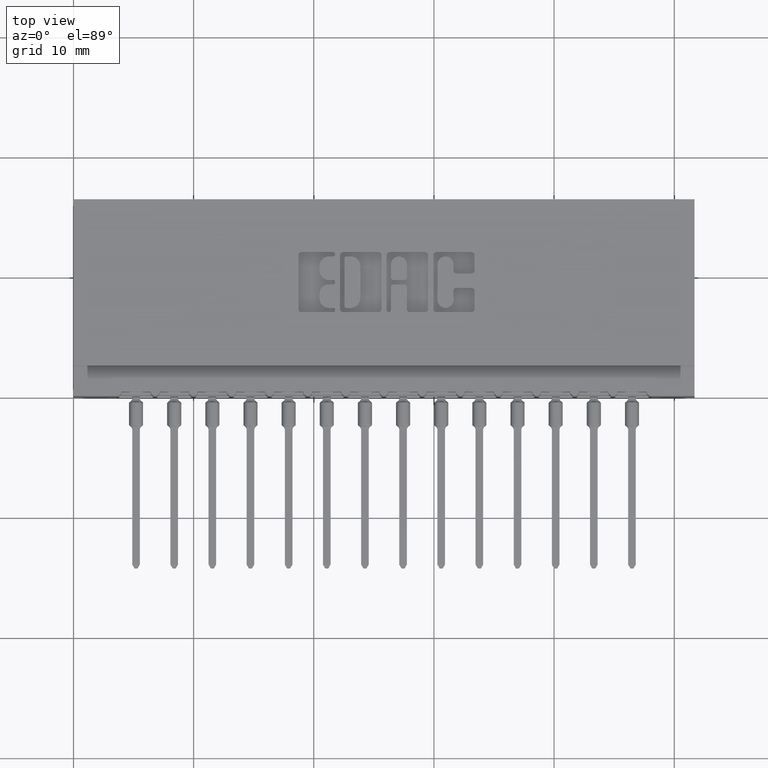
[diagram: clean part render]
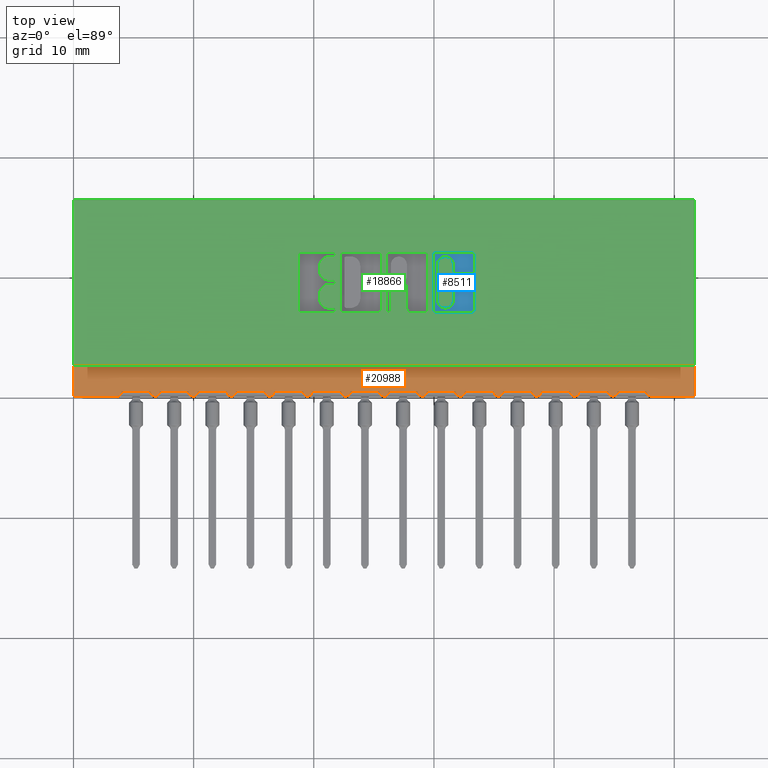
[diagram: same view with three faces highlighted in distinct colors, each labeled with its STEP entity id]
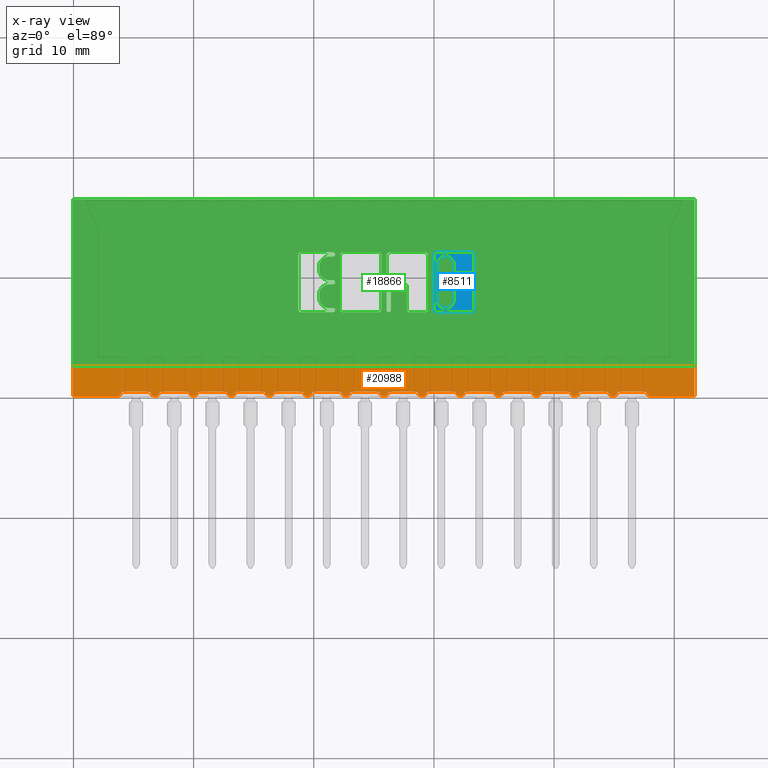
[diagram: x-ray of the same camera — body ghosted, the three highlighted faces saturated]
A machine part, top view with three faces highlighted in distinct colors.
The next image is the same camera in x-ray (body ghosted, the three faces saturated) — at least one of them is partly hidden behind the body in this view.
Their STEP definitions:

[orange] entity #20988 — the highlighted planar face has unit normal (0, 0, -1).
#189 = CARTESIAN_POINT ( 'NONE',  ( 0.8089999999999997193, 0.01499999999999999424, -0.02500000000000003608 ) ) ;
#194 = DIRECTION ( 'NONE',  ( 1.000000000000000000, 0.0000000000000000000, 0.0000000000000000000 ) ) ;
#204 = CARTESIAN_POINT ( 'NONE',  ( 0.6274999999999996136, 0.01499999999999997169, -0.02500000000000000486 ) ) ;
#222 = PLANE ( 'NONE',  #22904 ) ;
#652 = VERTEX_POINT ( 'NONE', #3126 ) ;
#697 = EDGE_CURVE ( 'NONE', #18872, #19073, #6753, .T. ) ;
#730 = DIRECTION ( 'NONE',  ( 1.000000000000000000, -0.0000000000000000000, -2.307304048702925122E-16 ) ) ;
#747 = VERTEX_POINT ( 'NONE', #21156 ) ;
#761 = DIRECTION ( 'NONE',  ( -0.0000000000000000000, 0.0000000000000000000, 1.000000000000000000 ) ) ;
#773 = DIRECTION ( 'NONE',  ( -1.000000000000000000, -0.0000000000000000000, -0.0000000000000000000 ) ) ;
#851 = CARTESIAN_POINT ( 'NONE',  ( 1.308999999999999941, 0.01499999999999999424, -0.02500000000000003608 ) ) ;
#878 = EDGE_CURVE ( 'NONE', #11287, #9197, #15738, .T. ) ;
#954 = VERTEX_POINT ( 'NONE', #4759 ) ;
#1006 = VECTOR ( 'NONE', #10316, 39.37007874015748143 ) ;
#1191 = DIRECTION ( 'NONE',  ( 1.000000000000000000, 0.0000000000000000000, 0.0000000000000000000 ) ) ;
#1316 = EDGE_CURVE ( 'NONE', #15400, #18324, #24148, .T. ) ;
#1406 = CIRCLE ( 'NONE', #15208, 0.01499999999999997689 ) ;
#1431 = VERTEX_POINT ( 'NONE', #7343 ) ;
#1659 = EDGE_CURVE ( 'NONE', #5678, #11287, #19934, .T. ) ;
#1735 = VECTOR ( 'NONE', #730, 39.37007874015748143 ) ;
#1932 = CARTESIAN_POINT ( 'NONE',  ( 0.9339999999999996083, 0.01499999999999999424, -0.02500000000000003608 ) ) ;
#1970 = ORIENTED_EDGE ( 'NONE', *, *, #10933, .F. ) ;
#2077 = CARTESIAN_POINT ( 'NONE',  ( 1.767499999999999627, 0.01499999999999997169, -0.02500000000000000486 ) ) ;
#2127 = DIRECTION ( 'NONE',  ( 1.000000000000000000, -0.0000000000000000000, -2.307304048702925122E-16 ) ) ;
#2137 = CARTESIAN_POINT ( 'NONE',  ( 0.4339999999999996638, 0.01499999999999999424, -0.02500000000000003608 ) ) ;
#2138 = ORIENTED_EDGE ( 'NONE', *, *, #6453, .T. ) ;
#2153 = VECTOR ( 'NONE', #21860, 39.37007874015748143 ) ;
#2221 = CARTESIAN_POINT ( 'NONE',  ( 0.3089999999999997193, 0.01499999999999999424, -0.02500000000000003608 ) ) ;
#2263 = ORIENTED_EDGE ( 'NONE', *, *, #21472, .T. ) ;
#2521 = CARTESIAN_POINT ( 'NONE',  ( 1.392499999999999627, 0.01499999999999997169, -0.02500000000000000486 ) ) ;
#2616 = DIRECTION ( 'NONE',  ( 1.000000000000000000, 0.0000000000000000000, 0.0000000000000000000 ) ) ;
#2638 = CARTESIAN_POINT ( 'NONE',  ( 0.1424999999999997102, 0.0000000000000000000, -0.02500000000000000486 ) ) ;
#2657 = CARTESIAN_POINT ( 'NONE',  ( 0.5589999999999997193, 0.01499999999999999424, -0.02500000000000003608 ) ) ;
#2658 = LINE ( 'NONE', #18201, #3266 ) ;
#2752 = LINE ( 'NONE', #8618, #12964 ) ;
#2779 = ORIENTED_EDGE ( 'NONE', *, *, #15661, .T. ) ;
#2878 = DIRECTION ( 'NONE',  ( -0.0000000000000000000, -1.000000000000000000, -0.0000000000000000000 ) ) ;
#2930 = DIRECTION ( 'NONE',  ( 1.000000000000000000, 0.0000000000000000000, 0.0000000000000000000 ) ) ;
#2945 = VECTOR ( 'NONE', #8068, 39.37007874015748143 ) ;
#3009 = CARTESIAN_POINT ( 'NONE',  ( 2.035000000000000142, 0.0000000000000000000, -0.02500000000000000486 ) ) ;
#3035 = CARTESIAN_POINT ( 'NONE',  ( 1.407499999999999751, 0.01499999999999997169, -0.02500000000000000486 ) ) ;
#3045 = ORIENTED_EDGE ( 'NONE', *, *, #697, .T. ) ;
#3126 = CARTESIAN_POINT ( 'NONE',  ( 1.252499999999999503, 0.01499999999999997169, -0.02500000000000000486 ) ) ;
#3191 = VERTEX_POINT ( 'NONE', #204 ) ;
#3245 = DIRECTION ( 'NONE',  ( -0.0000000000000000000, 0.0000000000000000000, 1.000000000000000000 ) ) ;
#3266 = VECTOR ( 'NONE', #773, 39.37007874015748143 ) ;
#3339 = CARTESIAN_POINT ( 'NONE',  ( 0.7824999999999997513, 0.01499999999999997169, -0.02500000000000000486 ) ) ;
#3355 = VECTOR ( 'NONE', #4344, 39.37007874015748143 ) ;
#3430 = CARTESIAN_POINT ( 'NONE',  ( 1.267499999999999627, 0.01499999999999997169, -0.02500000000000000486 ) ) ;
#3443 = EDGE_CURVE ( 'NONE', #21587, #8216, #12924, .T. ) ;
#3874 = VECTOR ( 'NONE', #2127, 39.37007874015748143 ) ;
#4011 = CARTESIAN_POINT ( 'NONE',  ( 1.157499999999999751, 0.01499999999999997169, -0.02500000000000000486 ) ) ;
#4083 = EDGE_CURVE ( 'NONE', #24081, #11319, #13714, .T. ) ;
#4344 = DIRECTION ( 'NONE',  ( 1.000000000000000000, -0.0000000000000000000, -2.307304048702925122E-16 ) ) ;
#4381 = ORIENTED_EDGE ( 'NONE', *, *, #15298, .F. ) ;
#4440 = AXIS2_PLACEMENT_3D ( 'NONE', #6426, #12430, #13832 ) ;
#4604 = EDGE_CURVE ( 'NONE', #8216, #5678, #13548, .T. ) ;
#4759 = CARTESIAN_POINT ( 'NONE',  ( 0.8774999999999997247, 0.01499999999999997169, -0.02500000000000000486 ) ) ;
#4787 = CARTESIAN_POINT ( 'NONE',  ( 0.1424999999999997102, 0.01499999999999997169, -0.02500000000000000486 ) ) ;
#4969 = EDGE_CURVE ( 'NONE', #6341, #24081, #12123, .T. ) ;
#5221 = DIRECTION ( 'NONE',  ( 1.000000000000000000, 0.0000000000000000000, 0.0000000000000000000 ) ) ;
#5362 = EDGE_CURVE ( 'NONE', #7749, #16430, #15984, .T. ) ;
#5395 = AXIS2_PLACEMENT_3D ( 'NONE', #9999, #19768, #23831 ) ;
#5528 = AXIS2_PLACEMENT_3D ( 'NONE', #15695, #8056, #15813 ) ;
#5646 = EDGE_CURVE ( 'NONE', #11994, #20212, #20853, .T. ) ;
#5678 = VERTEX_POINT ( 'NONE', #25109 ) ;
#5879 = DIRECTION ( 'NONE',  ( 1.000000000000000000, -0.0000000000000000000, -2.307304048702925122E-16 ) ) ;
#6021 = VECTOR ( 'NONE', #6774, 39.37007874015748143 ) ;
#6177 = DIRECTION ( 'NONE',  ( 0.0000000000000000000, 0.0000000000000000000, -1.000000000000000000 ) ) ;
#6212 = CARTESIAN_POINT ( 'NONE',  ( 0.7674999999999996270, 0.01499999999999997169, -0.02500000000000000486 ) ) ;
#6284 = EDGE_CURVE ( 'NONE', #3191, #11212, #22518, .T. ) ;
#6300 = CARTESIAN_POINT ( 'NONE',  ( 1.752499999999999503, 0.01499999999999997169, -0.02500000000000000486 ) ) ;
#6324 = EDGE_CURVE ( 'NONE', #954, #747, #22098, .T. ) ;
#6330 = CIRCLE ( 'NONE', #5528, 0.01499999999999997689 ) ;
#6341 = VERTEX_POINT ( 'NONE', #16436 ) ;
#6350 = DIRECTION ( 'NONE',  ( 1.000000000000000000, 0.0000000000000000000, 0.0000000000000000000 ) ) ;
#6378 = AXIS2_PLACEMENT_3D ( 'NONE', #2077, #8333, #194 ) ;
#6389 = LINE ( 'NONE', #8558, #6021 ) ;
#6426 = CARTESIAN_POINT ( 'NONE',  ( 1.517499999999999849, 0.01499999999999997169, -0.02500000000000000486 ) ) ;
#6438 = CARTESIAN_POINT ( 'NONE',  ( 0.4074999999999996958, 0.01499999999999997169, -0.02500000000000000486 ) ) ;
#6453 = EDGE_CURVE ( 'NONE', #652, #7749, #1406, .T. ) ;
#6527 = CARTESIAN_POINT ( 'NONE',  ( 1.808999999999999719, 0.01499999999999999424, -0.02500000000000003608 ) ) ;
#6549 = EDGE_CURVE ( 'NONE', #24925, #11994, #23900, .T. ) ;
#6753 = CIRCLE ( 'NONE', #14902, 0.01499999999999997689 ) ;
#6761 = VERTEX_POINT ( 'NONE', #3035 ) ;
#6774 = DIRECTION ( 'NONE',  ( 1.000000000000000000, -0.0000000000000000000, -2.307304048702925122E-16 ) ) ;
#6893 = ORIENTED_EDGE ( 'NONE', *, *, #6324, .T. ) ;
#7002 = ORIENTED_EDGE ( 'NONE', *, *, #17943, .T. ) ;
#7149 = CARTESIAN_POINT ( 'NONE',  ( 1.183999999999999719, 0.01499999999999999424, -0.02500000000000003608 ) ) ;
#7310 = CARTESIAN_POINT ( 'NONE',  ( 1.017499999999999627, 0.01499999999999997169, -0.02500000000000000486 ) ) ;
#7343 = CARTESIAN_POINT ( 'NONE',  ( 1.877499999999999503, 0.01499999999999997169, -0.02500000000000000486 ) ) ;
#7389 = CARTESIAN_POINT ( 'NONE',  ( 1.142499999999999627, 0.01499999999999997169, -0.02500000000000000486 ) ) ;
#7471 = ORIENTED_EDGE ( 'NONE', *, *, #20020, .T. ) ;
#7513 = CARTESIAN_POINT ( 'NONE',  ( 1.282499999999999751, 0.01499999999999997169, -0.02500000000000000486 ) ) ;
#7749 = VERTEX_POINT ( 'NONE', #7513 ) ;
#7810 = ORIENTED_EDGE ( 'NONE', *, *, #4969, .T. ) ;
#7827 = DIRECTION ( 'NONE',  ( 1.000000000000000000, -0.0000000000000000000, -2.307304048702925122E-16 ) ) ;
#7973 = CARTESIAN_POINT ( 'NONE',  ( 2.035000000000000142, 0.0000000000000000000, -0.02500000000000000486 ) ) ;
#8050 = EDGE_CURVE ( 'NONE', #1431, #24306, #14798, .T. ) ;
#8056 = DIRECTION ( 'NONE',  ( -0.0000000000000000000, 0.0000000000000000000, 1.000000000000000000 ) ) ;
#8068 = DIRECTION ( 'NONE',  ( 1.000000000000000000, -0.0000000000000000000, -2.307304048702925122E-16 ) ) ;
#8216 = VERTEX_POINT ( 'NONE', #20924 ) ;
#8222 = VECTOR ( 'NONE', #7827, 39.37007874015748143 ) ;
#8333 = DIRECTION ( 'NONE',  ( -0.0000000000000000000, 0.0000000000000000000, 1.000000000000000000 ) ) ;
#8374 = CARTESIAN_POINT ( 'NONE',  ( 0.5024999999999996136, 0.01499999999999997169, -0.02500000000000000486 ) ) ;
#8413 = ORIENTED_EDGE ( 'NONE', *, *, #24983, .F. ) ;
#8558 = CARTESIAN_POINT ( 'NONE',  ( 1.433999999999999719, 0.01499999999999999424, -0.02500000000000003608 ) ) ;
#8618 = CARTESIAN_POINT ( 'NONE',  ( 0.0000000000000000000, 0.0000000000000000000, -0.02500000000000000486 ) ) ;
#8674 = CARTESIAN_POINT ( 'NONE',  ( 0.8924999999999997380, 0.01499999999999997169, -0.02500000000000000486 ) ) ;
#8803 = CARTESIAN_POINT ( 'NONE',  ( 0.2524999999999996692, 0.01499999999999997169, -0.02500000000000000486 ) ) ;
#8935 = ORIENTED_EDGE ( 'NONE', *, *, #10201, .T. ) ;
#9197 = VERTEX_POINT ( 'NONE', #14129 ) ;
#9345 = EDGE_CURVE ( 'NONE', #20212, #3191, #10828, .T. ) ;
#9499 = DIRECTION ( 'NONE',  ( -0.0000000000000000000, 0.0000000000000000000, 1.000000000000000000 ) ) ;
#9521 = CARTESIAN_POINT ( 'NONE',  ( 2.035000000000000142, 0.0000000000000000000, -0.02500000000000000486 ) ) ;
#9740 = VERTEX_POINT ( 'NONE', #3339 ) ;
#9751 = DIRECTION ( 'NONE',  ( -0.0000000000000000000, 0.0000000000000000000, 1.000000000000000000 ) ) ;
#9999 = CARTESIAN_POINT ( 'NONE',  ( 1.642499999999999849, 0.01499999999999997169, -0.02500000000000000486 ) ) ;
#10030 = EDGE_CURVE ( 'NONE', #21921, #24925, #6330, .T. ) ;
#10201 = EDGE_CURVE ( 'NONE', #13388, #652, #12765, .T. ) ;
#10267 = CARTESIAN_POINT ( 'NONE',  ( 0.2824999999999996958, 0.01499999999999997169, -0.02500000000000000486 ) ) ;
#10316 = DIRECTION ( 'NONE',  ( 1.000000000000000000, -0.0000000000000000000, -2.307304048702925122E-16 ) ) ;
#10356 = CARTESIAN_POINT ( 'NONE',  ( 1.127499999999999725, 0.01499999999999997169, -0.02500000000000000486 ) ) ;
#10430 = LINE ( 'NONE', #3009, #17157 ) ;
#10817 = CARTESIAN_POINT ( 'NONE',  ( 0.2674999999999996825, 0.01499999999999997169, -0.02500000000000000486 ) ) ;
#10828 = LINE ( 'NONE', #2657, #20941 ) ;
#10933 = EDGE_CURVE ( 'NONE', #15400, #20744, #10430, .T. ) ;
#11195 = EDGE_CURVE ( 'NONE', #11319, #21921, #11669, .T. ) ;
#11212 = VERTEX_POINT ( 'NONE', #13828 ) ;
#11234 = DIRECTION ( 'NONE',  ( -0.0000000000000000000, 0.0000000000000000000, 1.000000000000000000 ) ) ;
#11287 = VERTEX_POINT ( 'NONE', #6300 ) ;
#11319 = VERTEX_POINT ( 'NONE', #10267 ) ;
#11444 = VERTEX_POINT ( 'NONE', #17197 ) ;
#11459 = AXIS2_PLACEMENT_3D ( 'NONE', #7389, #11234, #1191 ) ;
#11537 = ORIENTED_EDGE ( 'NONE', *, *, #6284, .T. ) ;
#11656 = DIRECTION ( 'NONE',  ( 1.000000000000000000, 0.0000000000000000000, 0.0000000000000000000 ) ) ;
#11669 = LINE ( 'NONE', #2221, #8222 ) ;
#11703 = LINE ( 'NONE', #11831, #3874 ) ;
#11831 = CARTESIAN_POINT ( 'NONE',  ( 0.6839999999999997193, 0.01499999999999999424, -0.02500000000000003608 ) ) ;
#11935 = CARTESIAN_POINT ( 'NONE',  ( 1.683999999999999497, 0.01499999999999999424, -0.02500000000000003608 ) ) ;
#11994 = VERTEX_POINT ( 'NONE', #8374 ) ;
#12105 = EDGE_CURVE ( 'NONE', #18324, #17547, #2752, .T. ) ;
#12123 = LINE ( 'NONE', #23662, #3355 ) ;
#12215 = VECTOR ( 'NONE', #5879, 39.37007874015748143 ) ;
#12234 = AXIS2_PLACEMENT_3D ( 'NONE', #2521, #16161, #23904 ) ;
#12242 = EDGE_CURVE ( 'NONE', #6761, #16195, #6389, .T. ) ;
#12312 = ORIENTED_EDGE ( 'NONE', *, *, #6549, .T. ) ;
#12341 = VERTEX_POINT ( 'NONE', #10356 ) ;
#12430 = DIRECTION ( 'NONE',  ( -0.0000000000000000000, 0.0000000000000000000, 1.000000000000000000 ) ) ;
#12524 = CARTESIAN_POINT ( 'NONE',  ( 0.5324999999999997513, 0.01499999999999997169, -0.02500000000000000486 ) ) ;
#12707 = ORIENTED_EDGE ( 'NONE', *, *, #4083, .T. ) ;
#12765 = LINE ( 'NONE', #7149, #14876 ) ;
#12924 = LINE ( 'NONE', #18377, #16301 ) ;
#12964 = VECTOR ( 'NONE', #16367, 39.37007874015748143 ) ;
#13113 = CARTESIAN_POINT ( 'NONE',  ( 0.0000000000000000000, 0.0000000000000000000, -0.02500000000000000486 ) ) ;
#13197 = VECTOR ( 'NONE', #18121, 39.37007874015748143 ) ;
#13261 = DIRECTION ( 'NONE',  ( -0.0000000000000000000, 0.0000000000000000000, 1.000000000000000000 ) ) ;
#13378 = CARTESIAN_POINT ( 'NONE',  ( 1.892499999999999627, 0.0000000000000000000, -0.02500000000000000486 ) ) ;
#13388 = VERTEX_POINT ( 'NONE', #4011 ) ;
#13514 = ORIENTED_EDGE ( 'NONE', *, *, #12242, .T. ) ;
#13546 = LINE ( 'NONE', #1932, #12215 ) ;
#13548 = CIRCLE ( 'NONE', #5395, 0.01499999999999997689 ) ;
#13657 = CARTESIAN_POINT ( 'NONE',  ( 2.035000000000000142, 0.1000000000000000056, -0.02500000000000000486 ) ) ;
#13714 = CIRCLE ( 'NONE', #16958, 0.01500000000000001159 ) ;
#13828 = CARTESIAN_POINT ( 'NONE',  ( 0.6574999999999997513, 0.01499999999999997169, -0.02500000000000000486 ) ) ;
#13832 = DIRECTION ( 'NONE',  ( 1.000000000000000000, 0.0000000000000000000, 0.0000000000000000000 ) ) ;
#13919 = LINE ( 'NONE', #189, #2945 ) ;
#14041 = CIRCLE ( 'NONE', #16897, 0.01500000000000001159 ) ;
#14129 = CARTESIAN_POINT ( 'NONE',  ( 1.782499999999999529, 0.01499999999999997169, -0.02500000000000000486 ) ) ;
#14213 = VERTEX_POINT ( 'NONE', #2638 ) ;
#14635 = EDGE_CURVE ( 'NONE', #16195, #21587, #20284, .T. ) ;
#14666 = ORIENTED_EDGE ( 'NONE', *, *, #16149, .T. ) ;
#14787 = DIRECTION ( 'NONE',  ( 1.000000000000000000, -0.0000000000000000000, -2.307304048702925122E-16 ) ) ;
#14798 = CIRCLE ( 'NONE', #16427, 0.01499999999999997689 ) ;
#14844 = ORIENTED_EDGE ( 'NONE', *, *, #878, .T. ) ;
#14876 = VECTOR ( 'NONE', #14787, 39.37007874015748143 ) ;
#14902 = AXIS2_PLACEMENT_3D ( 'NONE', #7310, #9499, #11656 ) ;
#14993 = DIRECTION ( 'NONE',  ( 1.000000000000000000, 0.0000000000000000000, 0.0000000000000000000 ) ) ;
#15038 = ORIENTED_EDGE ( 'NONE', *, *, #5646, .T. ) ;
#15208 = AXIS2_PLACEMENT_3D ( 'NONE', #3430, #13261, #23022 ) ;
#15223 = LINE ( 'NONE', #17131, #23621 ) ;
#15298 = EDGE_CURVE ( 'NONE', #14213, #17547, #23166, .T. ) ;
#15400 = VERTEX_POINT ( 'NONE', #13657 ) ;
#15661 = EDGE_CURVE ( 'NONE', #747, #18872, #13546, .T. ) ;
#15695 = CARTESIAN_POINT ( 'NONE',  ( 0.3924999999999996825, 0.01499999999999997169, -0.02500000000000000486 ) ) ;
#15738 = CIRCLE ( 'NONE', #6378, 0.01499999999999997689 ) ;
#15813 = DIRECTION ( 'NONE',  ( 1.000000000000000000, 0.0000000000000000000, 0.0000000000000000000 ) ) ;
#15896 = ORIENTED_EDGE ( 'NONE', *, *, #5362, .T. ) ;
#15983 = DIRECTION ( 'NONE',  ( 0.0000000000000000000, -0.0000000000000000000, -1.000000000000000000 ) ) ;
#15984 = LINE ( 'NONE', #851, #1735 ) ;
#15992 = DIRECTION ( 'NONE',  ( 1.000000000000000000, -0.0000000000000000000, -2.307304048702925122E-16 ) ) ;
#16021 = CARTESIAN_POINT ( 'NONE',  ( 2.035000000000000142, 0.1000000000000000056, -0.02500000000000000486 ) ) ;
#16023 = ORIENTED_EDGE ( 'NONE', *, *, #9345, .T. ) ;
#16034 = AXIS2_PLACEMENT_3D ( 'NONE', #6212, #761, #6350 ) ;
#16149 = EDGE_CURVE ( 'NONE', #16430, #6761, #16287, .T. ) ;
#16161 = DIRECTION ( 'NONE',  ( -0.0000000000000000000, 0.0000000000000000000, 1.000000000000000000 ) ) ;
#16195 = VERTEX_POINT ( 'NONE', #20484 ) ;
#16271 = EDGE_CURVE ( 'NONE', #20744, #24306, #2658, .T. ) ;
#16287 = CIRCLE ( 'NONE', #12234, 0.01499999999999997689 ) ;
#16301 = VECTOR ( 'NONE', #24469, 39.37007874015748143 ) ;
#16304 = DIRECTION ( 'NONE',  ( -0.0000000000000000000, 0.0000000000000000000, 1.000000000000000000 ) ) ;
#16367 = DIRECTION ( 'NONE',  ( -0.0000000000000000000, -1.000000000000000000, -0.0000000000000000000 ) ) ;
#16427 = AXIS2_PLACEMENT_3D ( 'NONE', #20317, #3245, #24110 ) ;
#16430 = VERTEX_POINT ( 'NONE', #18940 ) ;
#16436 = CARTESIAN_POINT ( 'NONE',  ( 0.1574999999999997236, 0.01499999999999997169, -0.02500000000000000486 ) ) ;
#16748 = CARTESIAN_POINT ( 'NONE',  ( 0.5174999999999996270, 0.01499999999999997169, -0.02500000000000000486 ) ) ;
#16779 = ORIENTED_EDGE ( 'NONE', *, *, #18754, .T. ) ;
#16826 = ORIENTED_EDGE ( 'NONE', *, *, #22290, .T. ) ;
#16897 = AXIS2_PLACEMENT_3D ( 'NONE', #4787, #15983, #2616 ) ;
#16921 = ORIENTED_EDGE ( 'NONE', *, *, #10030, .T. ) ;
#16958 = AXIS2_PLACEMENT_3D ( 'NONE', #10817, #24652, #14993 ) ;
#17131 = CARTESIAN_POINT ( 'NONE',  ( 1.058999999999999719, 0.01499999999999999424, -0.02500000000000003608 ) ) ;
#17157 = VECTOR ( 'NONE', #2878, 39.37007874015748143 ) ;
#17197 = CARTESIAN_POINT ( 'NONE',  ( 0.7524999999999997247, 0.01499999999999997169, -0.02500000000000000486 ) ) ;
#17547 = VERTEX_POINT ( 'NONE', #13113 ) ;
#17633 = ORIENTED_EDGE ( 'NONE', *, *, #4604, .T. ) ;
#17637 = FACE_OUTER_BOUND ( 'NONE', #20842, .T. ) ;
#17642 = ORIENTED_EDGE ( 'NONE', *, *, #8050, .T. ) ;
#17943 = EDGE_CURVE ( 'NONE', #19073, #12341, #15223, .T. ) ;
#18121 = DIRECTION ( 'NONE',  ( 1.000000000000000000, -0.0000000000000000000, -2.307304048702925122E-16 ) ) ;
#18201 = CARTESIAN_POINT ( 'NONE',  ( 2.035000000000000142, 0.0000000000000000000, -0.02500000000000000486 ) ) ;
#18324 = VERTEX_POINT ( 'NONE', #23069 ) ;
#18377 = CARTESIAN_POINT ( 'NONE',  ( 1.558999999999999719, 0.01499999999999999424, -0.02500000000000003608 ) ) ;
#18455 = CARTESIAN_POINT ( 'NONE',  ( 1.032499999999999751, 0.01499999999999997169, -0.02500000000000000486 ) ) ;
#18464 = AXIS2_PLACEMENT_3D ( 'NONE', #8674, #18468, #2930 ) ;
#18468 = DIRECTION ( 'NONE',  ( -0.0000000000000000000, 0.0000000000000000000, 1.000000000000000000 ) ) ;
#18568 = DIRECTION ( 'NONE',  ( 1.000000000000000000, -0.0000000000000000000, -2.307304048702925122E-16 ) ) ;
#18754 = EDGE_CURVE ( 'NONE', #12341, #13388, #19991, .T. ) ;
#18872 = VERTEX_POINT ( 'NONE', #23532 ) ;
#18940 = CARTESIAN_POINT ( 'NONE',  ( 1.377499999999999725, 0.01499999999999997169, -0.02500000000000000486 ) ) ;
#18955 = ORIENTED_EDGE ( 'NONE', *, *, #1659, .T. ) ;
#19073 = VERTEX_POINT ( 'NONE', #18455 ) ;
#19082 = ORIENTED_EDGE ( 'NONE', *, *, #14635, .T. ) ;
#19702 = CIRCLE ( 'NONE', #16034, 0.01499999999999997689 ) ;
#19768 = DIRECTION ( 'NONE',  ( -0.0000000000000000000, 0.0000000000000000000, 1.000000000000000000 ) ) ;
#19934 = LINE ( 'NONE', #11935, #20449 ) ;
#19990 = CARTESIAN_POINT ( 'NONE',  ( 0.3774999999999996692, 0.01499999999999997169, -0.02500000000000000486 ) ) ;
#19991 = CIRCLE ( 'NONE', #11459, 0.01499999999999997689 ) ;
#20019 = LINE ( 'NONE', #6527, #13197 ) ;
#20020 = EDGE_CURVE ( 'NONE', #9740, #954, #13919, .T. ) ;
#20212 = VERTEX_POINT ( 'NONE', #12524 ) ;
#20221 = ORIENTED_EDGE ( 'NONE', *, *, #23257, .T. ) ;
#20284 = CIRCLE ( 'NONE', #4440, 0.01499999999999997689 ) ;
#20317 = CARTESIAN_POINT ( 'NONE',  ( 1.892499999999999627, 0.01499999999999997169, -0.02500000000000000486 ) ) ;
#20449 = VECTOR ( 'NONE', #15992, 39.37007874015748143 ) ;
#20484 = CARTESIAN_POINT ( 'NONE',  ( 1.502499999999999503, 0.01499999999999997169, -0.02500000000000000486 ) ) ;
#20496 = AXIS2_PLACEMENT_3D ( 'NONE', #22144, #16304, #5221 ) ;
#20744 = VERTEX_POINT ( 'NONE', #9521 ) ;
#20842 = EDGE_LOOP ( 'NONE', ( #14844, #2263, #17642, #25123, #1970, #22773, #21100, #4381, #8413, #7810, #12707, #22167, #16921, #12312, #15038, #16023, #11537, #20221, #16826, #7471, #6893, #2779, #3045, #7002, #16779, #8935, #2138, #15896, #14666, #13514, #19082, #21612, #17633, #18955 ) ) ;
#20853 = CIRCLE ( 'NONE', #24502, 0.01499999999999997689 ) ;
#20924 = CARTESIAN_POINT ( 'NONE',  ( 1.627499999999999503, 0.01499999999999997169, -0.02500000000000000486 ) ) ;
#20941 = VECTOR ( 'NONE', #18568, 39.37007874015748143 ) ;
#20988 = ADVANCED_FACE ( 'NONE', ( #17637 ), #222, .F. ) ;
#21100 = ORIENTED_EDGE ( 'NONE', *, *, #12105, .T. ) ;
#21156 = CARTESIAN_POINT ( 'NONE',  ( 0.9074999999999996403, 0.01499999999999997169, -0.02500000000000000486 ) ) ;
#21426 = DIRECTION ( 'NONE',  ( 1.000000000000000000, 0.0000000000000000000, 0.0000000000000000000 ) ) ;
#21472 = EDGE_CURVE ( 'NONE', #9197, #1431, #20019, .T. ) ;
#21587 = VERTEX_POINT ( 'NONE', #24453 ) ;
#21612 = ORIENTED_EDGE ( 'NONE', *, *, #3443, .T. ) ;
#21695 = DIRECTION ( 'NONE',  ( -1.000000000000000000, 0.0000000000000000000, -0.0000000000000000000 ) ) ;
#21860 = DIRECTION ( 'NONE',  ( -1.000000000000000000, -0.0000000000000000000, -0.0000000000000000000 ) ) ;
#21921 = VERTEX_POINT ( 'NONE', #19990 ) ;
#22098 = CIRCLE ( 'NONE', #18464, 0.01499999999999997689 ) ;
#22144 = CARTESIAN_POINT ( 'NONE',  ( 0.6424999999999996270, 0.01499999999999997169, -0.02500000000000000486 ) ) ;
#22167 = ORIENTED_EDGE ( 'NONE', *, *, #11195, .T. ) ;
#22290 = EDGE_CURVE ( 'NONE', #11444, #9740, #19702, .T. ) ;
#22518 = CIRCLE ( 'NONE', #20496, 0.01499999999999997689 ) ;
#22773 = ORIENTED_EDGE ( 'NONE', *, *, #1316, .T. ) ;
#22787 = DIRECTION ( 'NONE',  ( -1.000000000000000000, -0.0000000000000000000, -0.0000000000000000000 ) ) ;
#22904 = AXIS2_PLACEMENT_3D ( 'NONE', #7973, #6177, #21695 ) ;
#23022 = DIRECTION ( 'NONE',  ( 1.000000000000000000, 0.0000000000000000000, 0.0000000000000000000 ) ) ;
#23069 = CARTESIAN_POINT ( 'NONE',  ( 0.0000000000000000000, 0.1000000000000000056, -0.02500000000000000486 ) ) ;
#23166 = LINE ( 'NONE', #24944, #23951 ) ;
#23218 = DIRECTION ( 'NONE',  ( 1.000000000000000000, -0.0000000000000000000, -2.307304048702925122E-16 ) ) ;
#23257 = EDGE_CURVE ( 'NONE', #11212, #11444, #11703, .T. ) ;
#23532 = CARTESIAN_POINT ( 'NONE',  ( 1.002499999999999725, 0.01499999999999997169, -0.02500000000000000486 ) ) ;
#23621 = VECTOR ( 'NONE', #23218, 39.37007874015748143 ) ;
#23662 = CARTESIAN_POINT ( 'NONE',  ( 0.1839999999999996916, 0.01499999999999999424, -0.02500000000000003608 ) ) ;
#23831 = DIRECTION ( 'NONE',  ( 1.000000000000000000, 0.0000000000000000000, 0.0000000000000000000 ) ) ;
#23900 = LINE ( 'NONE', #2137, #1006 ) ;
#23904 = DIRECTION ( 'NONE',  ( 1.000000000000000000, 0.0000000000000000000, 0.0000000000000000000 ) ) ;
#23951 = VECTOR ( 'NONE', #22787, 39.37007874015748143 ) ;
#24081 = VERTEX_POINT ( 'NONE', #8803 ) ;
#24110 = DIRECTION ( 'NONE',  ( 1.000000000000000000, 0.0000000000000000000, 0.0000000000000000000 ) ) ;
#24148 = LINE ( 'NONE', #16021, #2153 ) ;
#24306 = VERTEX_POINT ( 'NONE', #13378 ) ;
#24453 = CARTESIAN_POINT ( 'NONE',  ( 1.532499999999999529, 0.01499999999999997169, -0.02500000000000000486 ) ) ;
#24469 = DIRECTION ( 'NONE',  ( 1.000000000000000000, -0.0000000000000000000, -2.307304048702925122E-16 ) ) ;
#24502 = AXIS2_PLACEMENT_3D ( 'NONE', #16748, #9751, #21426 ) ;
#24652 = DIRECTION ( 'NONE',  ( -0.0000000000000000000, 0.0000000000000000000, 1.000000000000000000 ) ) ;
#24925 = VERTEX_POINT ( 'NONE', #6438 ) ;
#24944 = CARTESIAN_POINT ( 'NONE',  ( 2.035000000000000142, 0.0000000000000000000, -0.02500000000000000486 ) ) ;
#24983 = EDGE_CURVE ( 'NONE', #6341, #14213, #14041, .T. ) ;
#25109 = CARTESIAN_POINT ( 'NONE',  ( 1.657499999999999529, 0.01499999999999997169, -0.02500000000000000486 ) ) ;
#25123 = ORIENTED_EDGE ( 'NONE', *, *, #16271, .F. ) ;

[blue] entity #8511 — the highlighted planar face has unit normal (0, 0, 1).
#29 = DIRECTION ( 'NONE',  ( -0.0000000000000000000, 0.0000000000000000000, 1.000000000000000000 ) ) ;
#60 = EDGE_CURVE ( 'NONE', #24627, #7237, #2219, .T. ) ;
#91 = DIRECTION ( 'NONE',  ( 0.0000000000000000000, -1.000000000000000000, 0.0000000000000000000 ) ) ;
#156 = DIRECTION ( 'NONE',  ( 1.000000000000000000, 0.0000000000000000000, 0.0000000000000000000 ) ) ;
#196 = AXIS2_PLACEMENT_3D ( 'NONE', #24859, #9754, #15079 ) ;
#219 = CIRCLE ( 'NONE', #5890, 0.02625691779517380642 ) ;
#284 = CARTESIAN_POINT ( 'NONE',  ( 1.304362961706153179, 0.3440345564089705155, -0.01000000000000000021 ) ) ;
#377 = EDGE_CURVE ( 'NONE', #7926, #529, #5935, .T. ) ;
#529 = VERTEX_POINT ( 'NONE', #14210 ) ;
#718 = DIRECTION ( 'NONE',  ( 1.000000000000000000, 0.0000000000000000000, 0.0000000000000000000 ) ) ;
#759 = DIRECTION ( 'NONE',  ( -1.000000000000000000, 0.0000000000000000000, 0.0000000000000000000 ) ) ;
#825 = DIRECTION ( 'NONE',  ( 1.000000000000000000, 0.0000000000000000000, 0.0000000000000000000 ) ) ;
#958 = DIRECTION ( 'NONE',  ( 1.000000000000000000, 0.0000000000000000000, 0.0000000000000000000 ) ) ;
#1039 = CARTESIAN_POINT ( 'NONE',  ( 1.244978156973179262, 0.3143421540424530258, -0.01000000000000000021 ) ) ;
#1047 = VECTOR ( 'NONE', #6405, 39.37007874015748143 ) ;
#1193 = CIRCLE ( 'NONE', #15393, 0.009815670203840221042 ) ;
#1582 = EDGE_CURVE ( 'NONE', #19277, #24627, #2941, .T. ) ;
#1595 = CARTESIAN_POINT ( 'NONE',  ( 1.188538053301265274, 0.2841589681657900046, -0.01000000000000000021 ) ) ;
#1719 = VECTOR ( 'NONE', #17862, 39.37007874015748143 ) ;
#1731 = DIRECTION ( 'NONE',  ( 0.0000000000000000000, 1.000000000000000000, -0.0000000000000000000 ) ) ;
#1871 = CARTESIAN_POINT ( 'NONE',  ( 1.192464321382818548, 0.0000000000000000000, -0.01000000000000000021 ) ) ;
#1919 = VERTEX_POINT ( 'NONE', #2081 ) ;
#2048 = CARTESIAN_POINT ( 'NONE',  ( 1.314178631909972195, 0.4112718973050387139, -0.01000000000000000021 ) ) ;
#2062 = AXIS2_PLACEMENT_3D ( 'NONE', #1595, #11283, #9376 ) ;
#2081 = CARTESIAN_POINT ( 'NONE',  ( 1.304362961706168278, 0.4706567020380511002, -0.01000000000000000021 ) ) ;
#2219 = LINE ( 'NONE', #6421, #11615 ) ;
#2941 = CIRCLE ( 'NONE', #4989, 0.009815670203806345362 ) ;
#3115 = CARTESIAN_POINT ( 'NONE',  ( 1.314178631909972195, 0.4608410318341948919, -0.01000000000000000021 ) ) ;
#3351 = ORIENTED_EDGE ( 'NONE', *, *, #16754, .T. ) ;
#3471 = CARTESIAN_POINT ( 'NONE',  ( 1.304362961706156732, 0.3538502266127576124, -0.01000000000000000021 ) ) ;
#3744 = ORIENTED_EDGE ( 'NONE', *, *, #60, .T. ) ;
#4140 = CARTESIAN_POINT ( 'NONE',  ( 1.244978156973179262, 0.0000000000000000000, -0.01000000000000000021 ) ) ;
#4218 = ORIENTED_EDGE ( 'NONE', *, *, #22555, .T. ) ;
#4650 = EDGE_CURVE ( 'NONE', #16041, #24240, #23697, .T. ) ;
#4687 = LINE ( 'NONE', #6848, #24593 ) ;
#4989 = AXIS2_PLACEMENT_3D ( 'NONE', #9662, #19048, #5689 ) ;
#5010 = CARTESIAN_POINT ( 'NONE',  ( 0.0000000000000000000, 0.0000000000000000000, -0.01000000000000000021 ) ) ;
#5282 = AXIS2_PLACEMENT_3D ( 'NONE', #15870, #23614, #6450 ) ;
#5290 = DIRECTION ( 'NONE',  ( -1.000000000000000000, 0.0000000000000000000, 0.0000000000000000000 ) ) ;
#5487 = ORIENTED_EDGE ( 'NONE', *, *, #11012, .T. ) ;
#5689 = DIRECTION ( 'NONE',  ( 1.000000000000000000, 0.0000000000000000000, 0.0000000000000000000 ) ) ;
#5890 = AXIS2_PLACEMENT_3D ( 'NONE', #20342, #10561, #16016 ) ;
#5901 = VERTEX_POINT ( 'NONE', #11118 ) ;
#5935 = LINE ( 'NONE', #1871, #23794 ) ;
#6070 = VERTEX_POINT ( 'NONE', #21400 ) ;
#6203 = ORIENTED_EDGE ( 'NONE', *, *, #20573, .T. ) ;
#6405 = DIRECTION ( 'NONE',  ( 1.000000000000000000, 0.0000000000000000000, 0.0000000000000000000 ) ) ;
#6421 = CARTESIAN_POINT ( 'NONE',  ( 1.314178631909940220, 0.0000000000000000000, -0.01000000000000000021 ) ) ;
#6450 = DIRECTION ( 'NONE',  ( 1.000000000000000000, 0.0000000000000000000, 0.0000000000000000000 ) ) ;
#6673 = CARTESIAN_POINT ( 'NONE',  ( 1.254793827176966969, 0.3440345564089696273, -0.01000000000000000021 ) ) ;
#6737 = DIRECTION ( 'NONE',  ( 0.0000000000000000000, -1.000000000000000000, 0.0000000000000000000 ) ) ;
#6815 = EDGE_CURVE ( 'NONE', #22274, #19579, #6984, .T. ) ;
#6848 = CARTESIAN_POINT ( 'NONE',  ( 0.0000000000000000000, 0.3538502266127576124, -0.01000000000000000021 ) ) ;
#6984 = LINE ( 'NONE', #14751, #11575 ) ;
#7049 = LINE ( 'NONE', #18631, #19733 ) ;
#7138 = VERTEX_POINT ( 'NONE', #3471 ) ;
#7206 = ORIENTED_EDGE ( 'NONE', *, *, #8480, .T. ) ;
#7237 = VERTEX_POINT ( 'NONE', #14679 ) ;
#7532 = DIRECTION ( 'NONE',  ( -0.0000000000000000000, 0.0000000000000000000, 1.000000000000000000 ) ) ;
#7926 = VERTEX_POINT ( 'NONE', #24157 ) ;
#8051 = CARTESIAN_POINT ( 'NONE',  ( 1.254793827176977628, 0.4014562271012336869, -0.01000000000000000021 ) ) ;
#8157 = CIRCLE ( 'NONE', #2062, 0.009815670203806754757 ) ;
#8257 = EDGE_CURVE ( 'NONE', #19476, #8835, #20097, .T. ) ;
#8263 = AXIS2_PLACEMENT_3D ( 'NONE', #284, #29, #156 ) ;
#8480 = EDGE_CURVE ( 'NONE', #5901, #16041, #9962, .T. ) ;
#8511 = ADVANCED_FACE ( 'NONE', ( #20540 ), #16470, .T. ) ;
#8568 = ORIENTED_EDGE ( 'NONE', *, *, #377, .T. ) ;
#8616 = ORIENTED_EDGE ( 'NONE', *, *, #23336, .T. ) ;
#8764 = CARTESIAN_POINT ( 'NONE',  ( 1.304362961706166946, 0.4014562271012336869, -0.01000000000000000021 ) ) ;
#8835 = VERTEX_POINT ( 'NONE', #2048 ) ;
#8994 = CARTESIAN_POINT ( 'NONE',  ( 1.254793827176977628, 0.4112718973050452642, -0.01000000000000000021 ) ) ;
#9105 = VERTEX_POINT ( 'NONE', #11087 ) ;
#9119 = CARTESIAN_POINT ( 'NONE',  ( 1.178722383097458692, 0.2841589681657900046, -0.01000000000000000021 ) ) ;
#9376 = DIRECTION ( 'NONE',  ( 1.000000000000000000, 0.0000000000000000000, 0.0000000000000000000 ) ) ;
#9454 = VECTOR ( 'NONE', #5290, 39.37007874015748143 ) ;
#9662 = CARTESIAN_POINT ( 'NONE',  ( 1.304362961706134305, 0.2841589681657900046, -0.01000000000000000021 ) ) ;
#9754 = DIRECTION ( 'NONE',  ( -0.0000000000000000000, 0.0000000000000000000, 1.000000000000000000 ) ) ;
#9761 = EDGE_CURVE ( 'NONE', #15760, #19476, #7049, .T. ) ;
#9962 = CIRCLE ( 'NONE', #16453, 0.009815670203840902788 ) ;
#10070 = VERTEX_POINT ( 'NONE', #21646 ) ;
#10130 = LINE ( 'NONE', #20024, #1047 ) ;
#10207 = CIRCLE ( 'NONE', #5282, 0.02625691779518036367 ) ;
#10561 = DIRECTION ( 'NONE',  ( -0.0000000000000000000, 0.0000000000000000000, 1.000000000000000000 ) ) ;
#10562 = CARTESIAN_POINT ( 'NONE',  ( 1.244978156973166161, 0.4306578454992600058, -0.01000000000000000021 ) ) ;
#11012 = EDGE_CURVE ( 'NONE', #1919, #5901, #20700, .T. ) ;
#11087 = CARTESIAN_POINT ( 'NONE',  ( 1.254793827176966969, 0.3538502266127576124, -0.01000000000000000021 ) ) ;
#11118 = CARTESIAN_POINT ( 'NONE',  ( 1.188538053301299469, 0.4706567020380511002, -0.01000000000000000021 ) ) ;
#11283 = DIRECTION ( 'NONE',  ( -0.0000000000000000000, 0.0000000000000000000, 1.000000000000000000 ) ) ;
#11480 = VECTOR ( 'NONE', #91, 39.37007874015748143 ) ;
#11575 = VECTOR ( 'NONE', #6737, 39.37007874015748143 ) ;
#11609 = ORIENTED_EDGE ( 'NONE', *, *, #16587, .F. ) ;
#11615 = VECTOR ( 'NONE', #15726, 39.37007874015748143 ) ;
#12407 = CARTESIAN_POINT ( 'NONE',  ( 1.178722383097458692, 0.0000000000000000000, -0.01000000000000000021 ) ) ;
#12414 = DIRECTION ( 'NONE',  ( -0.0000000000000000000, 0.0000000000000000000, 1.000000000000000000 ) ) ;
#12794 = AXIS2_PLACEMENT_3D ( 'NONE', #5010, #12414, #24344 ) ;
#12875 = ORIENTED_EDGE ( 'NONE', *, *, #23840, .T. ) ;
#13161 = CIRCLE ( 'NONE', #8263, 0.009815670203787221770 ) ;
#13429 = ORIENTED_EDGE ( 'NONE', *, *, #6815, .T. ) ;
#13470 = AXIS2_PLACEMENT_3D ( 'NONE', #6673, #24352, #958 ) ;
#13862 = CIRCLE ( 'NONE', #13470, 0.009815670203787768208 ) ;
#13874 = CARTESIAN_POINT ( 'NONE',  ( 1.178722383097458692, 0.4608410318342101575, -0.01000000000000000021 ) ) ;
#14082 = CARTESIAN_POINT ( 'NONE',  ( 1.304362961706132085, 0.4608410318342109901, -0.01000000000000000021 ) ) ;
#14210 = CARTESIAN_POINT ( 'NONE',  ( 1.192464321382818548, 0.4306578459575296502, -0.01000000000000000021 ) ) ;
#14573 = EDGE_CURVE ( 'NONE', #18172, #1919, #1193, .T. ) ;
#14590 = CARTESIAN_POINT ( 'NONE',  ( 1.304362961706134305, 0.2743432979619832568, -0.01000000000000000021 ) ) ;
#14679 = CARTESIAN_POINT ( 'NONE',  ( 1.314178631909940220, 0.3440345564089705155, -0.01000000000000000021 ) ) ;
#14751 = CARTESIAN_POINT ( 'NONE',  ( 1.244978156973166161, 0.0000000000000000000, -0.01000000000000000021 ) ) ;
#14866 = CARTESIAN_POINT ( 'NONE',  ( 1.244978156973166161, 0.4112718973050452642, -0.01000000000000000021 ) ) ;
#15079 = DIRECTION ( 'NONE',  ( 1.000000000000000000, 0.0000000000000000000, 0.0000000000000000000 ) ) ;
#15213 = ORIENTED_EDGE ( 'NONE', *, *, #9761, .T. ) ;
#15274 = EDGE_LOOP ( 'NONE', ( #15213, #23110, #24960, #16071, #5487, #7206, #23615, #3351, #4218, #24395, #3744, #6203, #8616, #24636, #21732, #11609, #8568, #17500, #13429, #12875 ) ) ;
#15393 = AXIS2_PLACEMENT_3D ( 'NONE', #14082, #15973, #718 ) ;
#15424 = DIRECTION ( 'NONE',  ( 1.000000000000000000, 0.0000000000000000000, 0.0000000000000000000 ) ) ;
#15726 = DIRECTION ( 'NONE',  ( 0.0000000000000000000, 1.000000000000000000, -0.0000000000000000000 ) ) ;
#15760 = VERTEX_POINT ( 'NONE', #8051 ) ;
#15763 = EDGE_CURVE ( 'NONE', #8835, #18172, #19611, .T. ) ;
#15870 = CARTESIAN_POINT ( 'NONE',  ( 1.218721239177998905, 0.3143421540424530258, -0.01000000000000000021 ) ) ;
#15973 = DIRECTION ( 'NONE',  ( -0.0000000000000000000, 0.0000000000000000000, 1.000000000000000000 ) ) ;
#16016 = DIRECTION ( 'NONE',  ( 1.000000000000000000, 0.0000000000000000000, 0.0000000000000000000 ) ) ;
#16041 = VERTEX_POINT ( 'NONE', #13874 ) ;
#16071 = ORIENTED_EDGE ( 'NONE', *, *, #14573, .T. ) ;
#16453 = AXIS2_PLACEMENT_3D ( 'NONE', #18251, #24223, #825 ) ;
#16470 = PLANE ( 'NONE',  #12794 ) ;
#16587 = EDGE_CURVE ( 'NONE', #7926, #19074, #10207, .T. ) ;
#16754 = EDGE_CURVE ( 'NONE', #24240, #10070, #8157, .T. ) ;
#16856 = AXIS2_PLACEMENT_3D ( 'NONE', #8994, #7532, #15424 ) ;
#17046 = EDGE_CURVE ( 'NONE', #9105, #6070, #13862, .T. ) ;
#17254 = CIRCLE ( 'NONE', #16856, 0.009815670203811535655 ) ;
#17500 = ORIENTED_EDGE ( 'NONE', *, *, #24515, .F. ) ;
#17720 = DIRECTION ( 'NONE',  ( 0.0000000000000000000, 1.000000000000000000, -0.0000000000000000000 ) ) ;
#17862 = DIRECTION ( 'NONE',  ( 0.0000000000000000000, -1.000000000000000000, 0.0000000000000000000 ) ) ;
#18172 = VERTEX_POINT ( 'NONE', #3115 ) ;
#18193 = CARTESIAN_POINT ( 'NONE',  ( 1.314178631909940220, 0.2841589681657830102, -0.01000000000000000021 ) ) ;
#18251 = CARTESIAN_POINT ( 'NONE',  ( 1.188538053301299469, 0.4608410318342101575, -0.01000000000000000021 ) ) ;
#18631 = CARTESIAN_POINT ( 'NONE',  ( 0.0000000000000000000, 0.4014562271012336869, -0.01000000000000000021 ) ) ;
#19048 = DIRECTION ( 'NONE',  ( -0.0000000000000000000, 0.0000000000000000000, 1.000000000000000000 ) ) ;
#19074 = VERTEX_POINT ( 'NONE', #1039 ) ;
#19277 = VERTEX_POINT ( 'NONE', #14590 ) ;
#19476 = VERTEX_POINT ( 'NONE', #8764 ) ;
#19579 = VERTEX_POINT ( 'NONE', #14866 ) ;
#19611 = LINE ( 'NONE', #23438, #22346 ) ;
#19697 = EDGE_CURVE ( 'NONE', #6070, #19074, #23727, .T. ) ;
#19733 = VECTOR ( 'NONE', #24466, 39.37007874015748143 ) ;
#20024 = CARTESIAN_POINT ( 'NONE',  ( 0.0000000000000000000, 0.2743432979619832568, -0.01000000000000000021 ) ) ;
#20097 = CIRCLE ( 'NONE', #196, 0.009815670203805252486 ) ;
#20342 = CARTESIAN_POINT ( 'NONE',  ( 1.218721239177992244, 0.4306578459575296502, -0.01000000000000000021 ) ) ;
#20540 = FACE_OUTER_BOUND ( 'NONE', #15274, .T. ) ;
#20573 = EDGE_CURVE ( 'NONE', #7237, #7138, #13161, .T. ) ;
#20700 = LINE ( 'NONE', #24750, #9454 ) ;
#21400 = CARTESIAN_POINT ( 'NONE',  ( 1.244978156973179262, 0.3440345564089687391, -0.01000000000000000021 ) ) ;
#21646 = CARTESIAN_POINT ( 'NONE',  ( 1.188538053301265274, 0.2743432979619832568, -0.01000000000000000021 ) ) ;
#21732 = ORIENTED_EDGE ( 'NONE', *, *, #19697, .T. ) ;
#22274 = VERTEX_POINT ( 'NONE', #10562 ) ;
#22346 = VECTOR ( 'NONE', #17720, 39.37007874015748143 ) ;
#22555 = EDGE_CURVE ( 'NONE', #10070, #19277, #10130, .T. ) ;
#23110 = ORIENTED_EDGE ( 'NONE', *, *, #8257, .T. ) ;
#23336 = EDGE_CURVE ( 'NONE', #7138, #9105, #4687, .T. ) ;
#23438 = CARTESIAN_POINT ( 'NONE',  ( 1.314178631909972195, 0.0000000000000000000, -0.01000000000000000021 ) ) ;
#23614 = DIRECTION ( 'NONE',  ( -0.0000000000000000000, 0.0000000000000000000, 1.000000000000000000 ) ) ;
#23615 = ORIENTED_EDGE ( 'NONE', *, *, #4650, .T. ) ;
#23697 = LINE ( 'NONE', #12407, #1719 ) ;
#23727 = LINE ( 'NONE', #4140, #11480 ) ;
#23794 = VECTOR ( 'NONE', #1731, 39.37007874015748143 ) ;
#23840 = EDGE_CURVE ( 'NONE', #19579, #15760, #17254, .T. ) ;
#24157 = CARTESIAN_POINT ( 'NONE',  ( 1.192464321382818548, 0.3143421540424530258, -0.01000000000000000021 ) ) ;
#24223 = DIRECTION ( 'NONE',  ( -0.0000000000000000000, 0.0000000000000000000, 1.000000000000000000 ) ) ;
#24240 = VERTEX_POINT ( 'NONE', #9119 ) ;
#24344 = DIRECTION ( 'NONE',  ( 1.000000000000000000, 0.0000000000000000000, 0.0000000000000000000 ) ) ;
#24352 = DIRECTION ( 'NONE',  ( -0.0000000000000000000, 0.0000000000000000000, 1.000000000000000000 ) ) ;
#24395 = ORIENTED_EDGE ( 'NONE', *, *, #1582, .T. ) ;
#24466 = DIRECTION ( 'NONE',  ( 1.000000000000000000, 0.0000000000000000000, 0.0000000000000000000 ) ) ;
#24515 = EDGE_CURVE ( 'NONE', #22274, #529, #219, .T. ) ;
#24593 = VECTOR ( 'NONE', #759, 39.37007874015748143 ) ;
#24627 = VERTEX_POINT ( 'NONE', #18193 ) ;
#24636 = ORIENTED_EDGE ( 'NONE', *, *, #17046, .T. ) ;
#24750 = CARTESIAN_POINT ( 'NONE',  ( 0.0000000000000000000, 0.4706567020380511002, -0.01000000000000000021 ) ) ;
#24859 = CARTESIAN_POINT ( 'NONE',  ( 1.304362961706166946, 0.4112718973050387139, -0.01000000000000000021 ) ) ;
#24960 = ORIENTED_EDGE ( 'NONE', *, *, #15763, .T. ) ;

[green] entity #18866 — the highlighted planar face has unit normal (0, 0, -1).
#70 = EDGE_CURVE ( 'NONE', #2144, #22270, #23468, .T. ) ;
#95 = EDGE_CURVE ( 'NONE', #22342, #7388, #8210, .T. ) ;
#268 = DIRECTION ( 'NONE',  ( -0.0000000000000000000, 0.0000000000000000000, 1.000000000000000000 ) ) ;
#330 = ORIENTED_EDGE ( 'NONE', *, *, #7559, .F. ) ;
#331 = VECTOR ( 'NONE', #16486, 39.37007874015748143 ) ;
#345 = VERTEX_POINT ( 'NONE', #20952 ) ;
#489 = CARTESIAN_POINT ( 'NONE',  ( 0.7463421106199222832, 0.2841589681657900046, 0.0000000000000000000 ) ) ;
#491 = ORIENTED_EDGE ( 'NONE', *, *, #9561, .F. ) ;
#528 = CARTESIAN_POINT ( 'NONE',  ( 0.0000000000000000000, 0.6449999999999999067, 0.0000000000000000000 ) ) ;
#669 = VERTEX_POINT ( 'NONE', #3613 ) ;
#771 = AXIS2_PLACEMENT_3D ( 'NONE', #489, #8388, #8630 ) ;
#776 = CARTESIAN_POINT ( 'NONE',  ( 0.8506336065353513609, 0.4637857328953863267, 0.0000000000000000000 ) ) ;
#835 = LINE ( 'NONE', #2600, #331 ) ;
#869 = VERTEX_POINT ( 'NONE', #15714 ) ;
#901 = VERTEX_POINT ( 'NONE', #2333 ) ;
#943 = CARTESIAN_POINT ( 'NONE',  ( 0.8832707099629760750, 0.2841589681657900046, 0.0000000000000000000 ) ) ;
#1001 = EDGE_CURVE ( 'NONE', #3302, #1622, #22891, .T. ) ;
#1118 = VERTEX_POINT ( 'NONE', #11590 ) ;
#1132 = ORIENTED_EDGE ( 'NONE', *, *, #2228, .F. ) ;
#1153 = EDGE_LOOP ( 'NONE', ( #13336, #13133, #22964, #12990 ) ) ;
#1188 = EDGE_CURVE ( 'NONE', #22218, #12575, #3544, .T. ) ;
#1232 = ORIENTED_EDGE ( 'NONE', *, *, #18863, .F. ) ;
#1284 = CARTESIAN_POINT ( 'NONE',  ( 1.102160155507788009, 0.2841589681657878952, 0.0000000000000000000 ) ) ;
#1306 = CARTESIAN_POINT ( 'NONE',  ( 0.0000000000000000000, 0.4706567020380327815, 0.0000000000000000000 ) ) ;
#1319 = CARTESIAN_POINT ( 'NONE',  ( 1.314178631909940220, 0.3440345564089705155, 0.0000000000000000000 ) ) ;
#1324 = DIRECTION ( 'NONE',  ( -1.000000000000000000, -1.189163988687022540E-13, 0.0000000000000000000 ) ) ;
#1328 = EDGE_CURVE ( 'NONE', #1609, #6206, #14385, .T. ) ;
#1381 = VECTOR ( 'NONE', #17465, 39.37007874015748143 ) ;
#1404 = CIRCLE ( 'NONE', #23711, 0.006870969142663594688 ) ;
#1426 = CARTESIAN_POINT ( 'NONE',  ( 1.092344485303984758, 0.2841589681657878952, 0.0000000000000000000 ) ) ;
#1446 = DIRECTION ( 'NONE',  ( -0.0000000000000000000, 0.0000000000000000000, 1.000000000000000000 ) ) ;
#1453 = VECTOR ( 'NONE', #6164, 39.37007874015748143 ) ;
#1483 = CARTESIAN_POINT ( 'NONE',  ( 0.8371370600050840327, 0.3656290308573568737, 0.0000000000000000000 ) ) ;
#1497 = LINE ( 'NONE', #25008, #11079 ) ;
#1504 = CARTESIAN_POINT ( 'NONE',  ( 1.192464321382818548, 0.0000000000000000000, 0.0000000000000000000 ) ) ;
#1587 = CARTESIAN_POINT ( 'NONE',  ( 1.008911288571669118, 0.4608410318342101575, 0.0000000000000000000 ) ) ;
#1609 = VERTEX_POINT ( 'NONE', #3770 ) ;
#1612 = CARTESIAN_POINT ( 'NONE',  ( 1.178722383097458692, 0.0000000000000000000, 0.0000000000000000000 ) ) ;
#1622 = VERTEX_POINT ( 'NONE', #7851 ) ;
#1752 = CARTESIAN_POINT ( 'NONE',  ( 0.8506336065353355957, 0.2812142671046480302, 0.0000000000000000000 ) ) ;
#1772 = AXIS2_PLACEMENT_3D ( 'NONE', #16566, #14401, #4728 ) ;
#1806 = LINE ( 'NONE', #7407, #1381 ) ;
#1823 = VERTEX_POINT ( 'NONE', #13066 ) ;
#1899 = DIRECTION ( 'NONE',  ( -0.0000000000000000000, 0.0000000000000000000, 1.000000000000000000 ) ) ;
#2047 = VERTEX_POINT ( 'NONE', #6411 ) ;
#2058 = LINE ( 'NONE', #13913, #16606 ) ;
#2066 = CIRCLE ( 'NONE', #17940, 0.009815670203841039831 ) ;
#2144 = VERTEX_POINT ( 'NONE', #2714 ) ;
#2154 = VECTOR ( 'NONE', #7717, 39.37007874015748143 ) ;
#2172 = VECTOR ( 'NONE', #15603, 39.37007874015748143 ) ;
#2228 = EDGE_CURVE ( 'NONE', #1118, #345, #3337, .T. ) ;
#2239 = LINE ( 'NONE', #13840, #15673 ) ;
#2292 = CARTESIAN_POINT ( 'NONE',  ( 0.0000000000000000000, 0.6449999999999999067, 0.0000000000000000000 ) ) ;
#2333 = CARTESIAN_POINT ( 'NONE',  ( 0.8575045756779977602, 0.2812142671046480302, 0.0000000000000000000 ) ) ;
#2339 = ORIENTED_EDGE ( 'NONE', *, *, #6309, .F. ) ;
#2429 = LINE ( 'NONE', #528, #14398 ) ;
#2511 = CARTESIAN_POINT ( 'NONE',  ( 0.7463421106199185084, 0.2743432979619850332, 0.0000000000000000000 ) ) ;
#2541 = ORIENTED_EDGE ( 'NONE', *, *, #14803, .F. ) ;
#2565 = CARTESIAN_POINT ( 'NONE',  ( 0.8057269153529278416, 0.3342188862052006271, 0.0000000000000000000 ) ) ;
#2574 = CIRCLE ( 'NONE', #18837, 0.03141014465221578927 ) ;
#2600 = CARTESIAN_POINT ( 'NONE',  ( 0.8057269153529096339, 0.0000000000000000000, 0.0000000000000000000 ) ) ;
#2692 = EDGE_CURVE ( 'NONE', #14301, #5942, #18350, .T. ) ;
#2714 = CARTESIAN_POINT ( 'NONE',  ( 0.0000000000000000000, 0.6449999999999999067, 0.0000000000000000000 ) ) ;
#2729 = CARTESIAN_POINT ( 'NONE',  ( 0.9990956183678280089, 0.4608410318342100465, 0.0000000000000000000 ) ) ;
#2751 = EDGE_CURVE ( 'NONE', #14424, #15066, #8797, .T. ) ;
#3117 = CARTESIAN_POINT ( 'NONE',  ( 0.0000000000000000000, 0.3793709691426839226, 0.0000000000000000000 ) ) ;
#3133 = CARTESIAN_POINT ( 'NONE',  ( 1.254793827176977628, 0.4112718973050452642, 0.0000000000000000000 ) ) ;
#3140 = DIRECTION ( 'NONE',  ( -0.0000000000000000000, 0.0000000000000000000, 1.000000000000000000 ) ) ;
#3158 = CARTESIAN_POINT ( 'NONE',  ( 2.035000000000000142, 0.6449999999999999067, 0.0000000000000000000 ) ) ;
#3200 = VERTEX_POINT ( 'NONE', #15468 ) ;
#3302 = VERTEX_POINT ( 'NONE', #10262 ) ;
#3337 = LINE ( 'NONE', #11122, #15229 ) ;
#3454 = CIRCLE ( 'NONE', #15254, 0.009815670203806754757 ) ;
#3538 = VERTEX_POINT ( 'NONE', #9350 ) ;
#3544 = CIRCLE ( 'NONE', #18593, 0.009815670203796511215 ) ;
#3604 = DIRECTION ( 'NONE',  ( 0.0000000000000000000, -1.000000000000000000, 0.0000000000000000000 ) ) ;
#3613 = CARTESIAN_POINT ( 'NONE',  ( 0.8057269153529096339, 0.4255046191005198430, 0.0000000000000000000 ) ) ;
#3664 = EDGE_CURVE ( 'NONE', #3200, #24512, #6128, .T. ) ;
#3730 = VERTEX_POINT ( 'NONE', #23938 ) ;
#3770 = CARTESIAN_POINT ( 'NONE',  ( 0.8575045756779998696, 0.4637857328953863267, 0.0000000000000000000 ) ) ;
#3812 = CARTESIAN_POINT ( 'NONE',  ( 0.8506336065353100606, 0.3725000000000204259, 0.0000000000000000000 ) ) ;
#3847 = CARTESIAN_POINT ( 'NONE',  ( 1.304362961706132085, 0.4608410318342109901, 0.0000000000000000000 ) ) ;
#3853 = CARTESIAN_POINT ( 'NONE',  ( 1.192464321382818548, 0.3143421540424530258, 0.0000000000000000000 ) ) ;
#3875 = DIRECTION ( 'NONE',  ( 0.0000000000000000000, 1.000000000000000000, -0.0000000000000000000 ) ) ;
#3917 = CARTESIAN_POINT ( 'NONE',  ( 1.151729290037010633, 0.2841589681657809008, 0.0000000000000000000 ) ) ;
#3942 = ORIENTED_EDGE ( 'NONE', *, *, #11068, .T. ) ;
#3971 = CARTESIAN_POINT ( 'NONE',  ( 1.218721239177992244, 0.4306578459575296502, 0.0000000000000000000 ) ) ;
#4005 = ORIENTED_EDGE ( 'NONE', *, *, #24328, .F. ) ;
#4072 = FACE_BOUND ( 'NONE', #16414, .T. ) ;
#4078 = CARTESIAN_POINT ( 'NONE',  ( 1.304362961706156732, 0.3538502266127576124, 0.0000000000000000000 ) ) ;
#4129 = CARTESIAN_POINT ( 'NONE',  ( 0.8506336065353100606, 0.3793709691426839226, 0.0000000000000000000 ) ) ;
#4134 = CARTESIAN_POINT ( 'NONE',  ( 1.102160155507785788, 0.2743432979619847001, 0.0000000000000000000 ) ) ;
#4180 = ORIENTED_EDGE ( 'NONE', *, *, #16746, .F. ) ;
#4184 = DIRECTION ( 'NONE',  ( 1.000000000000000000, 0.0000000000000000000, 0.0000000000000000000 ) ) ;
#4205 = DIRECTION ( 'NONE',  ( -0.0000000000000000000, 0.0000000000000000000, 1.000000000000000000 ) ) ;
#4249 = LINE ( 'NONE', #6032, #18062 ) ;
#4255 = CIRCLE ( 'NONE', #15635, 0.02625691779518036367 ) ;
#4273 = AXIS2_PLACEMENT_3D ( 'NONE', #21010, #1446, #18736 ) ;
#4481 = CARTESIAN_POINT ( 'NONE',  ( -0.0000000000000000000, 0.4014562271012336869, 0.0000000000000000000 ) ) ;
#4528 = EDGE_CURVE ( 'NONE', #7650, #15116, #7305, .T. ) ;
#4618 = VECTOR ( 'NONE', #8433, 39.37007874015748143 ) ;
#4723 = CARTESIAN_POINT ( 'NONE',  ( 2.035000000000000142, 0.1000000000000000056, 0.0000000000000000000 ) ) ;
#4728 = DIRECTION ( 'NONE',  ( 1.000000000000000000, 0.0000000000000000000, 0.0000000000000000000 ) ) ;
#4786 = ORIENTED_EDGE ( 'NONE', *, *, #24803, .F. ) ;
#4824 = CIRCLE ( 'NONE', #771, 0.009815670203805935967 ) ;
#4837 = CARTESIAN_POINT ( 'NONE',  ( 1.244978156973166161, 0.4112718973050452642, 0.0000000000000000000 ) ) ;
#4916 = AXIS2_PLACEMENT_3D ( 'NONE', #12576, #22347, #18292 ) ;
#5060 = EDGE_CURVE ( 'NONE', #11213, #13342, #15555, .T. ) ;
#5341 = VECTOR ( 'NONE', #20879, 39.37007874015748143 ) ;
#5393 = CARTESIAN_POINT ( 'NONE',  ( 1.039830649713646915, 0.0000000000000000000, 0.0000000000000000000 ) ) ;
#5406 = ORIENTED_EDGE ( 'NONE', *, *, #18726, .F. ) ;
#5415 = AXIS2_PLACEMENT_3D ( 'NONE', #8402, #22240, #16157 ) ;
#5460 = CARTESIAN_POINT ( 'NONE',  ( 1.008911288571669118, 0.0000000000000000000, 0.0000000000000000000 ) ) ;
#5501 = EDGE_CURVE ( 'NONE', #7441, #22747, #10649, .T. ) ;
#5535 = CARTESIAN_POINT ( 'NONE',  ( 1.304362961706166946, 0.4014562271012335204, 0.0000000000000000000 ) ) ;
#5537 = DIRECTION ( 'NONE',  ( -1.000000000000000000, 0.0000000000000000000, 0.0000000000000000000 ) ) ;
#5552 = DIRECTION ( 'NONE',  ( 0.0000000000000000000, -1.000000000000000000, 0.0000000000000000000 ) ) ;
#5556 = VERTEX_POINT ( 'NONE', #22826 ) ;
#5608 = CARTESIAN_POINT ( 'NONE',  ( 1.304362961706166946, 0.4112718973050387139, 0.0000000000000000000 ) ) ;
#5659 = LINE ( 'NONE', #17001, #19545 ) ;
#5662 = ORIENTED_EDGE ( 'NONE', *, *, #16929, .T. ) ;
#5665 = CARTESIAN_POINT ( 'NONE',  ( 0.8371370600050840327, 0.3342188862052006271, 0.0000000000000000000 ) ) ;
#5705 = EDGE_CURVE ( 'NONE', #24430, #12575, #15204, .T. ) ;
#5725 = VERTEX_POINT ( 'NONE', #1587 ) ;
#5744 = CARTESIAN_POINT ( 'NONE',  ( 0.8506336065353513609, 0.4569147637527357642, 0.0000000000000000000 ) ) ;
#5758 = VERTEX_POINT ( 'NONE', #5535 ) ;
#5793 = DIRECTION ( 'NONE',  ( -0.0000000000000000000, -1.000000000000000000, -0.0000000000000000000 ) ) ;
#5931 = EDGE_CURVE ( 'NONE', #7441, #669, #2574, .T. ) ;
#5942 = VERTEX_POINT ( 'NONE', #1319 ) ;
#6025 = EDGE_CURVE ( 'NONE', #14741, #869, #18030, .T. ) ;
#6031 = VECTOR ( 'NONE', #5793, 39.37007874015748143 ) ;
#6032 = CARTESIAN_POINT ( 'NONE',  ( -0.0000000000000000000, 0.4706567020380066912, 0.0000000000000000000 ) ) ;
#6067 = CIRCLE ( 'NONE', #22721, 0.009815670203796920609 ) ;
#6102 = EDGE_CURVE ( 'NONE', #3730, #23783, #1806, .T. ) ;
#6128 = LINE ( 'NONE', #6262, #24554 ) ;
#6164 = DIRECTION ( 'NONE',  ( -0.0000000000000000000, -1.000000000000000000, -0.0000000000000000000 ) ) ;
#6206 = VERTEX_POINT ( 'NONE', #13784 ) ;
#6230 = EDGE_CURVE ( 'NONE', #2144, #6872, #2429, .T. ) ;
#6235 = PLANE ( 'NONE',  #12681 ) ;
#6262 = CARTESIAN_POINT ( 'NONE',  ( 0.0000000000000000000, 0.4706567020380511002, 0.0000000000000000000 ) ) ;
#6309 = EDGE_CURVE ( 'NONE', #901, #1118, #15607, .T. ) ;
#6314 = CARTESIAN_POINT ( 'NONE',  ( 1.188538053301265274, 0.2743432979619832568, 0.0000000000000000000 ) ) ;
#6327 = ORIENTED_EDGE ( 'NONE', *, *, #8311, .F. ) ;
#6360 = CARTESIAN_POINT ( 'NONE',  ( 1.254793827176977628, 0.4014562271012336869, 0.0000000000000000000 ) ) ;
#6411 = CARTESIAN_POINT ( 'NONE',  ( 1.244978156973166161, 0.4306578454992600058, 0.0000000000000000000 ) ) ;
#6412 = ORIENTED_EDGE ( 'NONE', *, *, #18178, .F. ) ;
#6529 = DIRECTION ( 'NONE',  ( -0.0000000000000000000, 0.0000000000000000000, 1.000000000000000000 ) ) ;
#6586 = AXIS2_PLACEMENT_3D ( 'NONE', #5608, #24697, #24942 ) ;
#6619 = AXIS2_PLACEMENT_3D ( 'NONE', #19605, #4205, #19741 ) ;
#6661 = DIRECTION ( 'NONE',  ( 1.000000000000000000, 0.0000000000000000000, 0.0000000000000000000 ) ) ;
#6678 = DIRECTION ( 'NONE',  ( 1.000000000000000000, 0.0000000000000000000, 0.0000000000000000000 ) ) ;
#6695 = CARTESIAN_POINT ( 'NONE',  ( 0.9990956183678961766, 0.4706567020380511002, 0.0000000000000000000 ) ) ;
#6743 = ORIENTED_EDGE ( 'NONE', *, *, #22788, .F. ) ;
#6769 = ORIENTED_EDGE ( 'NONE', *, *, #1001, .F. ) ;
#6779 = ORIENTED_EDGE ( 'NONE', *, *, #3664, .F. ) ;
#6830 = ORIENTED_EDGE ( 'NONE', *, *, #8771, .F. ) ;
#6853 = ORIENTED_EDGE ( 'NONE', *, *, #13772, .F. ) ;
#6872 = VERTEX_POINT ( 'NONE', #3158 ) ;
#6878 = AXIS2_PLACEMENT_3D ( 'NONE', #24388, #3140, #12581 ) ;
#7007 = VECTOR ( 'NONE', #11075, 39.37007874015748143 ) ;
#7034 = LINE ( 'NONE', #17207, #7493 ) ;
#7037 = VECTOR ( 'NONE', #13695, 39.37007874015748143 ) ;
#7084 = ORIENTED_EDGE ( 'NONE', *, *, #6102, .F. ) ;
#7107 = DIRECTION ( 'NONE',  ( 1.000000000000000000, 0.0000000000000000000, 0.0000000000000000000 ) ) ;
#7116 = CIRCLE ( 'NONE', #14833, 0.02625691779517380642 ) ;
#7253 = CIRCLE ( 'NONE', #10136, 0.006870969142662229460 ) ;
#7301 = VERTEX_POINT ( 'NONE', #17222 ) ;
#7305 = LINE ( 'NONE', #15575, #7037 ) ;
#7309 = DIRECTION ( 'NONE',  ( 1.000000000000000000, 0.0000000000000000000, 0.0000000000000000000 ) ) ;
#7324 = CARTESIAN_POINT ( 'NONE',  ( 0.8734550397591692716, 0.2841589681657900046, 0.0000000000000000000 ) ) ;
#7388 = VERTEX_POINT ( 'NONE', #7789 ) ;
#7407 = CARTESIAN_POINT ( 'NONE',  ( 1.314178631909972195, 0.0000000000000000000, 0.0000000000000000000 ) ) ;
#7441 = VERTEX_POINT ( 'NONE', #22018 ) ;
#7493 = VECTOR ( 'NONE', #13411, 39.37007874015748143 ) ;
#7539 = DIRECTION ( 'NONE',  ( 1.000000000000000000, 0.0000000000000000000, 0.0000000000000000000 ) ) ;
#7559 = EDGE_CURVE ( 'NONE', #7824, #5758, #23813, .T. ) ;
#7587 = CARTESIAN_POINT ( 'NONE',  ( 0.7365264404161154799, 0.4608410318342101575, 0.0000000000000000000 ) ) ;
#7600 = DIRECTION ( 'NONE',  ( 0.0000000000000000000, -1.000000000000000000, 0.0000000000000000000 ) ) ;
#7622 = ORIENTED_EDGE ( 'NONE', *, *, #24832, .F. ) ;
#7650 = VERTEX_POINT ( 'NONE', #1426 ) ;
#7717 = DIRECTION ( 'NONE',  ( 0.0000000000000000000, -1.000000000000000000, 0.0000000000000000000 ) ) ;
#7778 = AXIS2_PLACEMENT_3D ( 'NONE', #24600, #9231, #21026 ) ;
#7780 = EDGE_CURVE ( 'NONE', #19802, #16923, #1404, .T. ) ;
#7789 = CARTESIAN_POINT ( 'NONE',  ( 0.8506336064154144117, 0.2743432979619857548, 0.0000000000000000000 ) ) ;
#7809 = EDGE_CURVE ( 'NONE', #22747, #1609, #22516, .T. ) ;
#7824 = VERTEX_POINT ( 'NONE', #6360 ) ;
#7830 = VERTEX_POINT ( 'NONE', #13758 ) ;
#7838 = LINE ( 'NONE', #13836, #2172 ) ;
#7842 = DIRECTION ( 'NONE',  ( -0.0000000000000000000, 0.0000000000000000000, 1.000000000000000000 ) ) ;
#7851 = CARTESIAN_POINT ( 'NONE',  ( 0.9990956183678622038, 0.2743432979619832568, 0.0000000000000000000 ) ) ;
#7885 = CARTESIAN_POINT ( 'NONE',  ( 0.8734550397591692716, 0.4608410318342101575, 0.0000000000000000000 ) ) ;
#7894 = DIRECTION ( 'NONE',  ( 0.0000000000000000000, 1.000000000000000000, -0.0000000000000000000 ) ) ;
#8031 = ORIENTED_EDGE ( 'NONE', *, *, #12020, .F. ) ;
#8089 = CARTESIAN_POINT ( 'NONE',  ( 0.7463421106199380484, 0.4706567020380327815, 0.0000000000000000000 ) ) ;
#8098 = CARTESIAN_POINT ( 'NONE',  ( 1.314178631909972195, 0.4608410318341948919, 0.0000000000000000000 ) ) ;
#8210 = LINE ( 'NONE', #19911, #9186 ) ;
#8275 = VERTEX_POINT ( 'NONE', #1483 ) ;
#8311 = EDGE_CURVE ( 'NONE', #25035, #13911, #23086, .T. ) ;
#8314 = DIRECTION ( 'NONE',  ( 1.000000000000000000, 0.0000000000000000000, 0.0000000000000000000 ) ) ;
#8340 = DIRECTION ( 'NONE',  ( 1.000000000000000000, 0.0000000000000000000, 0.0000000000000000000 ) ) ;
#8353 = EDGE_CURVE ( 'NONE', #22218, #17713, #4249, .T. ) ;
#8357 = CIRCLE ( 'NONE', #8761, 0.009815670203840902788 ) ;
#8388 = DIRECTION ( 'NONE',  ( -0.0000000000000000000, 0.0000000000000000000, 1.000000000000000000 ) ) ;
#8398 = EDGE_CURVE ( 'NONE', #10920, #17431, #10756, .T. ) ;
#8402 = CARTESIAN_POINT ( 'NONE',  ( 0.8506336065353513609, 0.4637857328953863267, 0.0000000000000000000 ) ) ;
#8428 = VERTEX_POINT ( 'NONE', #19902 ) ;
#8433 = DIRECTION ( 'NONE',  ( 1.000000000000000000, 0.0000000000000000000, 0.0000000000000000000 ) ) ;
#8497 = VERTEX_POINT ( 'NONE', #18369 ) ;
#8630 = DIRECTION ( 'NONE',  ( 1.000000000000000000, 0.0000000000000000000, 0.0000000000000000000 ) ) ;
#8727 = ORIENTED_EDGE ( 'NONE', *, *, #21418, .F. ) ;
#8732 = AXIS2_PLACEMENT_3D ( 'NONE', #21918, #15716, #19521 ) ;
#8737 = CIRCLE ( 'NONE', #18085, 0.009815670203803203778 ) ;
#8747 = DIRECTION ( 'NONE',  ( -0.0000000000000000000, 0.0000000000000000000, 1.000000000000000000 ) ) ;
#8761 = AXIS2_PLACEMENT_3D ( 'NONE', #13060, #24371, #18764 ) ;
#8762 = ORIENTED_EDGE ( 'NONE', *, *, #18803, .F. ) ;
#8771 = EDGE_CURVE ( 'NONE', #23783, #3200, #24574, .T. ) ;
#8797 = CIRCLE ( 'NONE', #22989, 0.009815670203787768208 ) ;
#8819 = EDGE_CURVE ( 'NONE', #2047, #3538, #7116, .T. ) ;
#8881 = DIRECTION ( 'NONE',  ( 1.000000000000000000, 0.0000000000000000000, 0.0000000000000000000 ) ) ;
#8904 = DIRECTION ( 'NONE',  ( -0.0000000000000000000, 0.0000000000000000000, 1.000000000000000000 ) ) ;
#8931 = AXIS2_PLACEMENT_3D ( 'NONE', #12926, #20298, #6678 ) ;
#8955 = DIRECTION ( 'NONE',  ( -0.0000000000000000000, 0.0000000000000000000, 1.000000000000000000 ) ) ;
#8979 = ORIENTED_EDGE ( 'NONE', *, *, #14864, .F. ) ;
#9026 = ORIENTED_EDGE ( 'NONE', *, *, #13148, .T. ) ;
#9044 = AXIS2_PLACEMENT_3D ( 'NONE', #18609, #8955, #11474 ) ;
#9049 = CARTESIAN_POINT ( 'NONE',  ( -0.0000000000000000000, 0.2743432979619832568, 0.0000000000000000000 ) ) ;
#9081 = LINE ( 'NONE', #10491, #10564 ) ;
#9186 = VECTOR ( 'NONE', #10265, 39.37007874015748143 ) ;
#9208 = VERTEX_POINT ( 'NONE', #7885 ) ;
#9231 = DIRECTION ( 'NONE',  ( -0.0000000000000000000, 0.0000000000000000000, 1.000000000000000000 ) ) ;
#9298 = AXIS2_PLACEMENT_3D ( 'NONE', #3133, #8747, #8881 ) ;
#9312 = DIRECTION ( 'NONE',  ( 1.000000000000000000, 0.0000000000000000000, 0.0000000000000000000 ) ) ;
#9350 = CARTESIAN_POINT ( 'NONE',  ( 1.192464321382818548, 0.4306578459575296502, 0.0000000000000000000 ) ) ;
#9354 = ORIENTED_EDGE ( 'NONE', *, *, #2692, .F. ) ;
#9368 = CARTESIAN_POINT ( 'NONE',  ( 0.0000000000000000000, 0.4706567020380511002, 0.0000000000000000000 ) ) ;
#9455 = ORIENTED_EDGE ( 'NONE', *, *, #16695, .F. ) ;
#9561 = EDGE_CURVE ( 'NONE', #7830, #8428, #12838, .T. ) ;
#9575 = LINE ( 'NONE', #19088, #18253 ) ;
#9629 = ORIENTED_EDGE ( 'NONE', *, *, #10677, .F. ) ;
#9638 = CARTESIAN_POINT ( 'NONE',  ( 0.0000000000000000000, 0.2743432979619847001, 0.0000000000000000000 ) ) ;
#9741 = ORIENTED_EDGE ( 'NONE', *, *, #19188, .F. ) ;
#9770 = LINE ( 'NONE', #23221, #6031 ) ;
#9796 = VERTEX_POINT ( 'NONE', #3853 ) ;
#9811 = VECTOR ( 'NONE', #17385, 39.37007874015748143 ) ;
#9931 = CARTESIAN_POINT ( 'NONE',  ( 1.188538053301299469, 0.4706567020380511002, 0.0000000000000000000 ) ) ;
#9960 = ORIENTED_EDGE ( 'NONE', *, *, #17958, .T. ) ;
#9969 = ORIENTED_EDGE ( 'NONE', *, *, #19518, .F. ) ;
#10039 = CIRCLE ( 'NONE', #17736, 0.009815670203806754757 ) ;
#10136 = AXIS2_PLACEMENT_3D ( 'NONE', #1752, #15632, #23134 ) ;
#10262 = CARTESIAN_POINT ( 'NONE',  ( 0.8832707099629760750, 0.2743432979619832568, 0.0000000000000000000 ) ) ;
#10265 = DIRECTION ( 'NONE',  ( 1.000000000000000000, 7.203446383881645102E-15, 0.0000000000000000000 ) ) ;
#10470 = VECTOR ( 'NONE', #9312, 39.37007874015748143 ) ;
#10491 = CARTESIAN_POINT ( 'NONE',  ( 2.035000000000000142, 0.1000000000000000056, 0.0000000000000000000 ) ) ;
#10520 = DIRECTION ( 'NONE',  ( -0.0000000000000000000, 0.0000000000000000000, 1.000000000000000000 ) ) ;
#10554 = CIRCLE ( 'NONE', #8931, 0.006870969142663594688 ) ;
#10564 = VECTOR ( 'NONE', #14541, 39.37007874015748143 ) ;
#10613 = CIRCLE ( 'NONE', #4916, 0.009815670203795690690 ) ;
#10618 = CARTESIAN_POINT ( 'NONE',  ( 0.8371370600051254440, 0.4255046191005198430, 0.0000000000000000000 ) ) ;
#10641 = CARTESIAN_POINT ( 'NONE',  ( 0.8575045756779736683, 0.3725000000000204259, 0.0000000000000000000 ) ) ;
#10649 = LINE ( 'NONE', #20803, #20452 ) ;
#10666 = CARTESIAN_POINT ( 'NONE',  ( 1.314178631909940220, 0.2841589681657830102, 0.0000000000000000000 ) ) ;
#10677 = EDGE_CURVE ( 'NONE', #1622, #11073, #10039, .T. ) ;
#10756 = CIRCLE ( 'NONE', #8732, 0.03141014465217440571 ) ;
#10825 = EDGE_LOOP ( 'NONE', ( #24392, #9455, #3942, #491, #5662, #4005, #22766, #23966, #22898, #21691, #15134, #6743, #24932, #11097 ) ) ;
#10920 = VERTEX_POINT ( 'NONE', #18298 ) ;
#11068 = EDGE_CURVE ( 'NONE', #22541, #8428, #1497, .T. ) ;
#11070 = CIRCLE ( 'NONE', #9044, 0.009815670203840902788 ) ;
#11073 = VERTEX_POINT ( 'NONE', #22606 ) ;
#11075 = DIRECTION ( 'NONE',  ( 1.000000000000000000, 0.0000000000000000000, 0.0000000000000000000 ) ) ;
#11079 = VECTOR ( 'NONE', #5552, 39.37007874015748143 ) ;
#11083 = VERTEX_POINT ( 'NONE', #7324 ) ;
#11097 = ORIENTED_EDGE ( 'NONE', *, *, #1188, .F. ) ;
#11122 = CARTESIAN_POINT ( 'NONE',  ( -3.425805886175743989E-14, 0.2880852362472091088, 0.0000000000000000000 ) ) ;
#11129 = VERTEX_POINT ( 'NONE', #4134 ) ;
#11137 = VECTOR ( 'NONE', #3875, 39.37007874015748143 ) ;
#11213 = VERTEX_POINT ( 'NONE', #8089 ) ;
#11351 = EDGE_CURVE ( 'NONE', #10920, #669, #835, .T. ) ;
#11365 = ORIENTED_EDGE ( 'NONE', *, *, #5931, .T. ) ;
#11414 = DIRECTION ( 'NONE',  ( 0.0000000000000000000, 1.000000000000000000, -0.0000000000000000000 ) ) ;
#11474 = DIRECTION ( 'NONE',  ( 1.000000000000000000, 0.0000000000000000000, 0.0000000000000000000 ) ) ;
#11491 = DIRECTION ( 'NONE',  ( -0.0000000000000000000, 0.0000000000000000000, 1.000000000000000000 ) ) ;
#11569 = CARTESIAN_POINT ( 'NONE',  ( 0.9990956183678622038, 0.2841589681657900046, 0.0000000000000000000 ) ) ;
#11590 = CARTESIAN_POINT ( 'NONE',  ( 0.8506336064154144117, 0.2880852362473102501, 0.0000000000000000000 ) ) ;
#11598 = DIRECTION ( 'NONE',  ( -0.0000000000000000000, 0.0000000000000000000, 1.000000000000000000 ) ) ;
#11601 = DIRECTION ( 'NONE',  ( 1.000000000000000000, 0.0000000000000000000, 0.0000000000000000000 ) ) ;
#11653 = ORIENTED_EDGE ( 'NONE', *, *, #24300, .F. ) ;
#11688 = CARTESIAN_POINT ( 'NONE',  ( 1.178722383097458692, 0.2841589681657900046, 0.0000000000000000000 ) ) ;
#11749 = DIRECTION ( 'NONE',  ( -0.0000000000000000000, 0.0000000000000000000, 1.000000000000000000 ) ) ;
#11756 = VERTEX_POINT ( 'NONE', #4837 ) ;
#11773 = CARTESIAN_POINT ( 'NONE',  ( 1.304362961706153179, 0.3440345564089705155, 0.0000000000000000000 ) ) ;
#11951 = AXIS2_PLACEMENT_3D ( 'NONE', #776, #268, #4184 ) ;
#12020 = EDGE_CURVE ( 'NONE', #11756, #7824, #20249, .T. ) ;
#12166 = LINE ( 'NONE', #9638, #9811 ) ;
#12169 = CARTESIAN_POINT ( 'NONE',  ( 0.0000000000000000000, 0.6449999999999999067, 0.0000000000000000000 ) ) ;
#12397 = CARTESIAN_POINT ( 'NONE',  ( 1.092344485303984758, 0.3558133606535435201, 0.0000000000000000000 ) ) ;
#12420 = DIRECTION ( 'NONE',  ( -0.0000000000000000000, 0.0000000000000000000, 1.000000000000000000 ) ) ;
#12436 = CIRCLE ( 'NONE', #15251, 0.009815670203806345362 ) ;
#12514 = EDGE_CURVE ( 'NONE', #1823, #14974, #9575, .T. ) ;
#12575 = VERTEX_POINT ( 'NONE', #17445 ) ;
#12576 = CARTESIAN_POINT ( 'NONE',  ( 1.151729290037011744, 0.4608410318342104350, 0.0000000000000000000 ) ) ;
#12581 = DIRECTION ( 'NONE',  ( 1.000000000000000000, 0.0000000000000000000, 0.0000000000000000000 ) ) ;
#12588 = CIRCLE ( 'NONE', #6878, 0.03141014465218178175 ) ;
#12681 = AXIS2_PLACEMENT_3D ( 'NONE', #2292, #14013, #21246 ) ;
#12838 = CIRCLE ( 'NONE', #20539, 0.009815670203796237128 ) ;
#12852 = CARTESIAN_POINT ( 'NONE',  ( 1.218721239177998905, 0.3143421540424530258, 0.0000000000000000000 ) ) ;
#12926 = CARTESIAN_POINT ( 'NONE',  ( 0.8506336065353100606, 0.3725000000000204259, 0.0000000000000000000 ) ) ;
#12990 = ORIENTED_EDGE ( 'NONE', *, *, #6230, .F. ) ;
#13051 = CARTESIAN_POINT ( 'NONE',  ( 1.049646319917450388, 0.3656290308573487136, 0.0000000000000000000 ) ) ;
#13060 = CARTESIAN_POINT ( 'NONE',  ( 1.188538053301299469, 0.4608410318342101575, 0.0000000000000000000 ) ) ;
#13066 = CARTESIAN_POINT ( 'NONE',  ( 0.8057269153529278416, 0.3194953808994904221, 0.0000000000000000000 ) ) ;
#13077 = DIRECTION ( 'NONE',  ( -0.0000000000000000000, 0.0000000000000000000, 1.000000000000000000 ) ) ;
#13099 = ORIENTED_EDGE ( 'NONE', *, *, #8398, .T. ) ;
#13111 = CIRCLE ( 'NONE', #6586, 0.009815670203805252486 ) ;
#13120 = DIRECTION ( 'NONE',  ( 0.0000000000000000000, 1.000000000000000000, -0.0000000000000000000 ) ) ;
#13133 = ORIENTED_EDGE ( 'NONE', *, *, #15162, .F. ) ;
#13148 = EDGE_CURVE ( 'NONE', #1823, #345, #12588, .T. ) ;
#13208 = DIRECTION ( 'NONE',  ( 1.000000000000000000, 0.0000000000000000000, 0.0000000000000000000 ) ) ;
#13280 = ORIENTED_EDGE ( 'NONE', *, *, #13499, .F. ) ;
#13336 = ORIENTED_EDGE ( 'NONE', *, *, #70, .T. ) ;
#13342 = VERTEX_POINT ( 'NONE', #7587 ) ;
#13411 = DIRECTION ( 'NONE',  ( -1.000000000000000000, 0.0000000000000000000, 0.0000000000000000000 ) ) ;
#13471 = ORIENTED_EDGE ( 'NONE', *, *, #21683, .F. ) ;
#13499 = EDGE_CURVE ( 'NONE', #18847, #19802, #10554, .T. ) ;
#13669 = DIRECTION ( 'NONE',  ( -0.0000000000000000000, 0.0000000000000000000, 1.000000000000000000 ) ) ;
#13695 = DIRECTION ( 'NONE',  ( 0.0000000000000000000, 1.000000000000000000, -0.0000000000000000000 ) ) ;
#13758 = CARTESIAN_POINT ( 'NONE',  ( 1.151729290037010633, 0.2743432979619847001, 0.0000000000000000000 ) ) ;
#13772 = EDGE_CURVE ( 'NONE', #8275, #18847, #2058, .T. ) ;
#13784 = CARTESIAN_POINT ( 'NONE',  ( 0.8506336065353513609, 0.4706567020380327815, 0.0000000000000000000 ) ) ;
#13836 = CARTESIAN_POINT ( 'NONE',  ( 1.244978156973166161, 0.0000000000000000000, 0.0000000000000000000 ) ) ;
#13840 = CARTESIAN_POINT ( 'NONE',  ( 0.7365264404161154799, 0.0000000000000000000, 0.0000000000000000000 ) ) ;
#13911 = VERTEX_POINT ( 'NONE', #20972 ) ;
#13913 = CARTESIAN_POINT ( 'NONE',  ( -0.0000000000000000000, 0.3656290308573568737, 0.0000000000000000000 ) ) ;
#13984 = ORIENTED_EDGE ( 'NONE', *, *, #22664, .F. ) ;
#14013 = DIRECTION ( 'NONE',  ( 0.0000000000000000000, 0.0000000000000000000, -1.000000000000000000 ) ) ;
#14110 = ORIENTED_EDGE ( 'NONE', *, *, #1328, .F. ) ;
#14120 = EDGE_CURVE ( 'NONE', #7388, #901, #7253, .T. ) ;
#14196 = EDGE_CURVE ( 'NONE', #8497, #22342, #4824, .T. ) ;
#14268 = DIRECTION ( 'NONE',  ( 1.000000000000000000, 0.0000000000000000000, 0.0000000000000000000 ) ) ;
#14301 = VERTEX_POINT ( 'NONE', #10666 ) ;
#14385 = CIRCLE ( 'NONE', #5415, 0.006870969142648433205 ) ;
#14398 = VECTOR ( 'NONE', #14268, 39.37007874015748143 ) ;
#14401 = DIRECTION ( 'NONE',  ( -0.0000000000000000000, 0.0000000000000000000, 1.000000000000000000 ) ) ;
#14424 = VERTEX_POINT ( 'NONE', #25012 ) ;
#14434 = CARTESIAN_POINT ( 'NONE',  ( -0.0000000000000000000, 0.2743432979619832568, 0.0000000000000000000 ) ) ;
#14516 = EDGE_CURVE ( 'NONE', #6872, #21975, #9770, .T. ) ;
#14541 = DIRECTION ( 'NONE',  ( -1.000000000000000000, -0.0000000000000000000, -0.0000000000000000000 ) ) ;
#14604 = VECTOR ( 'NONE', #18643, 39.37007874015748143 ) ;
#14663 = VERTEX_POINT ( 'NONE', #15733 ) ;
#14741 = VERTEX_POINT ( 'NONE', #13051 ) ;
#14803 = EDGE_CURVE ( 'NONE', #16923, #17431, #18758, .T. ) ;
#14833 = AXIS2_PLACEMENT_3D ( 'NONE', #3971, #11749, #23551 ) ;
#14864 = EDGE_CURVE ( 'NONE', #15066, #16912, #22817, .T. ) ;
#14939 = DIRECTION ( 'NONE',  ( 1.000000000000000000, 0.0000000000000000000, 0.0000000000000000000 ) ) ;
#14974 = VERTEX_POINT ( 'NONE', #2565 ) ;
#15020 = DIRECTION ( 'NONE',  ( 1.000000000000000000, 0.0000000000000000000, 0.0000000000000000000 ) ) ;
#15033 = CARTESIAN_POINT ( 'NONE',  ( 1.254793827176966969, 0.3440345564089696273, 0.0000000000000000000 ) ) ;
#15066 = VERTEX_POINT ( 'NONE', #18359 ) ;
#15084 = DIRECTION ( 'NONE',  ( 0.0000000000000000000, -1.000000000000000000, 0.0000000000000000000 ) ) ;
#15097 = LINE ( 'NONE', #1504, #24066 ) ;
#15116 = VERTEX_POINT ( 'NONE', #12397 ) ;
#15134 = ORIENTED_EDGE ( 'NONE', *, *, #19908, .T. ) ;
#15162 = EDGE_CURVE ( 'NONE', #21975, #22270, #9081, .T. ) ;
#15204 = LINE ( 'NONE', #19402, #11137 ) ;
#15229 = VECTOR ( 'NONE', #1324, 39.37007874015748143 ) ;
#15251 = AXIS2_PLACEMENT_3D ( 'NONE', #19295, #7842, #17768 ) ;
#15254 = AXIS2_PLACEMENT_3D ( 'NONE', #943, #6529, #6661 ) ;
#15372 = EDGE_CURVE ( 'NONE', #15116, #7301, #6067, .T. ) ;
#15468 = CARTESIAN_POINT ( 'NONE',  ( 1.304362961706168278, 0.4706567020380511002, 0.0000000000000000000 ) ) ;
#15469 = VERTEX_POINT ( 'NONE', #11688 ) ;
#15516 = CIRCLE ( 'NONE', #17135, 0.03141014465215623969 ) ;
#15555 = CIRCLE ( 'NONE', #6619, 0.009815670203822599721 ) ;
#15575 = CARTESIAN_POINT ( 'NONE',  ( 1.092344485303984758, 0.0000000000000000000, 0.0000000000000000000 ) ) ;
#15603 = DIRECTION ( 'NONE',  ( 0.0000000000000000000, -1.000000000000000000, 0.0000000000000000000 ) ) ;
#15607 = CIRCLE ( 'NONE', #1772, 0.006870969142662229460 ) ;
#15632 = DIRECTION ( 'NONE',  ( -0.0000000000000000000, 0.0000000000000000000, 1.000000000000000000 ) ) ;
#15635 = AXIS2_PLACEMENT_3D ( 'NONE', #12852, #8904, #7107 ) ;
#15645 = VECTOR ( 'NONE', #13120, 39.37007874015748143 ) ;
#15667 = ORIENTED_EDGE ( 'NONE', *, *, #7809, .F. ) ;
#15673 = VECTOR ( 'NONE', #7600, 39.37007874015748143 ) ;
#15714 = CARTESIAN_POINT ( 'NONE',  ( 1.039830649713646915, 0.3558133606535456295, 0.0000000000000000000 ) ) ;
#15716 = DIRECTION ( 'NONE',  ( -0.0000000000000000000, 0.0000000000000000000, 1.000000000000000000 ) ) ;
#15733 = CARTESIAN_POINT ( 'NONE',  ( 1.178722383097458692, 0.4608410318342101575, 0.0000000000000000000 ) ) ;
#15758 = CARTESIAN_POINT ( 'NONE',  ( 1.151729290037013964, 0.4706567020380066912, 0.0000000000000000000 ) ) ;
#15898 = CIRCLE ( 'NONE', #7778, 0.009815670203806754757 ) ;
#15908 = DIRECTION ( 'NONE',  ( -0.0000000000000000000, 0.0000000000000000000, 1.000000000000000000 ) ) ;
#16157 = DIRECTION ( 'NONE',  ( 1.000000000000000000, 0.0000000000000000000, 0.0000000000000000000 ) ) ;
#16414 = EDGE_LOOP ( 'NONE', ( #5406, #330, #8031, #19813, #24710, #9969, #19682, #8979, #20719, #13471, #8727, #9354, #7622, #9741, #22646, #17658, #18708, #6779, #6830, #7084 ) ) ;
#16445 = CARTESIAN_POINT ( 'NONE',  ( 1.314178631909940220, 0.0000000000000000000, 0.0000000000000000000 ) ) ;
#16486 = DIRECTION ( 'NONE',  ( 0.0000000000000000000, 1.000000000000000000, -0.0000000000000000000 ) ) ;
#16566 = CARTESIAN_POINT ( 'NONE',  ( 0.8506336065353355957, 0.2812142671046480302, 0.0000000000000000000 ) ) ;
#16606 = VECTOR ( 'NONE', #8314, 39.37007874015748143 ) ;
#16695 = EDGE_CURVE ( 'NONE', #22541, #17713, #10613, .T. ) ;
#16746 = EDGE_CURVE ( 'NONE', #9208, #11083, #5659, .T. ) ;
#16795 = DIRECTION ( 'NONE',  ( -0.0000000000000000000, 0.0000000000000000000, 1.000000000000000000 ) ) ;
#16802 = LINE ( 'NONE', #5460, #15645 ) ;
#16912 = VERTEX_POINT ( 'NONE', #17619 ) ;
#16923 = VERTEX_POINT ( 'NONE', #4129 ) ;
#16929 = EDGE_CURVE ( 'NONE', #7830, #11129, #12166, .T. ) ;
#17001 = CARTESIAN_POINT ( 'NONE',  ( 0.8734550397591692716, 0.0000000000000000000, 0.0000000000000000000 ) ) ;
#17052 = CARTESIAN_POINT ( 'NONE',  ( -1.290985506876488798E-14, 0.3656290308573115766, 0.0000000000000000000 ) ) ;
#17135 = AXIS2_PLACEMENT_3D ( 'NONE', #5665, #13077, #13208 ) ;
#17160 = EDGE_LOOP ( 'NONE', ( #6412, #11653, #9629, #6769, #13984, #4180, #1232, #6327 ) ) ;
#17207 = CARTESIAN_POINT ( 'NONE',  ( 0.0000000000000000000, 0.3538502266127576124, 0.0000000000000000000 ) ) ;
#17222 = CARTESIAN_POINT ( 'NONE',  ( 1.082528815100188169, 0.3656290308573498238, 0.0000000000000000000 ) ) ;
#17311 = DIRECTION ( 'NONE',  ( -0.0000000000000000000, 0.0000000000000000000, 1.000000000000000000 ) ) ;
#17385 = DIRECTION ( 'NONE',  ( -1.000000000000000000, 0.0000000000000000000, 0.0000000000000000000 ) ) ;
#17431 = VERTEX_POINT ( 'NONE', #24540 ) ;
#17445 = CARTESIAN_POINT ( 'NONE',  ( 1.026088711428331024, 0.4608410318342101575, 0.0000000000000000000 ) ) ;
#17452 = FACE_OUTER_BOUND ( 'NONE', #1153, .T. ) ;
#17465 = DIRECTION ( 'NONE',  ( 0.0000000000000000000, 1.000000000000000000, -0.0000000000000000000 ) ) ;
#17619 = CARTESIAN_POINT ( 'NONE',  ( 1.244978156973179262, 0.3143421540424530258, 0.0000000000000000000 ) ) ;
#17658 = ORIENTED_EDGE ( 'NONE', *, *, #20843, .F. ) ;
#17678 = AXIS2_PLACEMENT_3D ( 'NONE', #3847, #11491, #14939 ) ;
#17713 = VERTEX_POINT ( 'NONE', #15758 ) ;
#17736 = AXIS2_PLACEMENT_3D ( 'NONE', #11569, #16795, #24539 ) ;
#17738 = DIRECTION ( 'NONE',  ( 1.000000000000000000, 0.0000000000000000000, 0.0000000000000000000 ) ) ;
#17768 = DIRECTION ( 'NONE',  ( 1.000000000000000000, 0.0000000000000000000, 0.0000000000000000000 ) ) ;
#17940 = AXIS2_PLACEMENT_3D ( 'NONE', #2729, #10520, #18513 ) ;
#17958 = EDGE_CURVE ( 'NONE', #8275, #14974, #15516, .T. ) ;
#18030 = CIRCLE ( 'NONE', #20061, 0.009815670203803203778 ) ;
#18062 = VECTOR ( 'NONE', #23958, 39.37007874015748143 ) ;
#18085 = AXIS2_PLACEMENT_3D ( 'NONE', #1284, #17311, #15020 ) ;
#18178 = EDGE_CURVE ( 'NONE', #5725, #25035, #2066, .T. ) ;
#18253 = VECTOR ( 'NONE', #7894, 39.37007874015748143 ) ;
#18292 = DIRECTION ( 'NONE',  ( 1.000000000000000000, 0.0000000000000000000, 0.0000000000000000000 ) ) ;
#18298 = CARTESIAN_POINT ( 'NONE',  ( 0.8057269153529096339, 0.4107811137948584324, 0.0000000000000000000 ) ) ;
#18301 = EDGE_CURVE ( 'NONE', #15469, #23722, #15898, .T. ) ;
#18350 = LINE ( 'NONE', #16445, #19730 ) ;
#18359 = CARTESIAN_POINT ( 'NONE',  ( 1.244978156973179262, 0.3440345564089687391, 0.0000000000000000000 ) ) ;
#18369 = CARTESIAN_POINT ( 'NONE',  ( 0.7365264404161154799, 0.2841589681657900046, 0.0000000000000000000 ) ) ;
#18390 = VECTOR ( 'NONE', #3604, 39.37007874015748143 ) ;
#18428 = AXIS2_PLACEMENT_3D ( 'NONE', #11773, #19514, #17738 ) ;
#18513 = DIRECTION ( 'NONE',  ( 1.000000000000000000, 0.0000000000000000000, 0.0000000000000000000 ) ) ;
#18583 = LINE ( 'NONE', #9049, #7007 ) ;
#18593 = AXIS2_PLACEMENT_3D ( 'NONE', #25049, #1899, #19459 ) ;
#18609 = CARTESIAN_POINT ( 'NONE',  ( 0.8832707099630102698, 0.4608410318342101575, 0.0000000000000000000 ) ) ;
#18643 = DIRECTION ( 'NONE',  ( -1.000000000000000000, 0.0000000000000000000, 0.0000000000000000000 ) ) ;
#18669 = VECTOR ( 'NONE', #21149, 39.37007874015748143 ) ;
#18708 = ORIENTED_EDGE ( 'NONE', *, *, #25103, .F. ) ;
#18726 = EDGE_CURVE ( 'NONE', #5758, #3730, #13111, .T. ) ;
#18736 = DIRECTION ( 'NONE',  ( 1.000000000000000000, 0.0000000000000000000, 0.0000000000000000000 ) ) ;
#18738 = DIRECTION ( 'NONE',  ( -0.0000000000000000000, 0.0000000000000000000, 1.000000000000000000 ) ) ;
#18758 = LINE ( 'NONE', #3117, #14604 ) ;
#18764 = DIRECTION ( 'NONE',  ( 1.000000000000000000, 0.0000000000000000000, 0.0000000000000000000 ) ) ;
#18803 = EDGE_CURVE ( 'NONE', #6206, #11213, #22784, .T. ) ;
#18837 = AXIS2_PLACEMENT_3D ( 'NONE', #10618, #18738, #22180 ) ;
#18842 = CIRCLE ( 'NONE', #18428, 0.009815670203787221770 ) ;
#18847 = VERTEX_POINT ( 'NONE', #22548 ) ;
#18863 = EDGE_CURVE ( 'NONE', #13911, #9208, #11070, .T. ) ;
#18866 = ADVANCED_FACE ( 'NONE', ( #4072, #23420, #17452, #23652, #21500 ), #6235, .F. ) ;
#19088 = CARTESIAN_POINT ( 'NONE',  ( 0.8057269153529278416, 0.0000000000000000000, 0.0000000000000000000 ) ) ;
#19152 = EDGE_CURVE ( 'NONE', #7301, #14741, #22522, .T. ) ;
#19158 = VECTOR ( 'NONE', #24790, 39.37007874015748143 ) ;
#19188 = EDGE_CURVE ( 'NONE', #23722, #23715, #18583, .T. ) ;
#19295 = CARTESIAN_POINT ( 'NONE',  ( 1.304362961706134305, 0.2841589681657900046, 0.0000000000000000000 ) ) ;
#19341 = DIRECTION ( 'NONE',  ( 1.000000000000000000, 0.0000000000000000000, 0.0000000000000000000 ) ) ;
#19402 = CARTESIAN_POINT ( 'NONE',  ( 1.026088711428331024, 0.0000000000000000000, 0.0000000000000000000 ) ) ;
#19459 = DIRECTION ( 'NONE',  ( 1.000000000000000000, 0.0000000000000000000, 0.0000000000000000000 ) ) ;
#19514 = DIRECTION ( 'NONE',  ( -0.0000000000000000000, 0.0000000000000000000, 1.000000000000000000 ) ) ;
#19518 = EDGE_CURVE ( 'NONE', #9796, #3538, #15097, .T. ) ;
#19521 = DIRECTION ( 'NONE',  ( 1.000000000000000000, 0.0000000000000000000, 0.0000000000000000000 ) ) ;
#19545 = VECTOR ( 'NONE', #15084, 39.37007874015748143 ) ;
#19573 = CARTESIAN_POINT ( 'NONE',  ( 1.026088711428331024, 0.2812142671046480302, 0.0000000000000000000 ) ) ;
#19605 = CARTESIAN_POINT ( 'NONE',  ( 0.7463421106199380484, 0.4608410318342101575, 0.0000000000000000000 ) ) ;
#19682 = ORIENTED_EDGE ( 'NONE', *, *, #22366, .T. ) ;
#19730 = VECTOR ( 'NONE', #24192, 39.37007874015748143 ) ;
#19741 = DIRECTION ( 'NONE',  ( 1.000000000000000000, 0.0000000000000000000, 0.0000000000000000000 ) ) ;
#19802 = VERTEX_POINT ( 'NONE', #10641 ) ;
#19810 = ORIENTED_EDGE ( 'NONE', *, *, #11351, .F. ) ;
#19813 = ORIENTED_EDGE ( 'NONE', *, *, #20932, .F. ) ;
#19902 = CARTESIAN_POINT ( 'NONE',  ( 1.161544960240806779, 0.2841589681657809008, 0.0000000000000000000 ) ) ;
#19908 = EDGE_CURVE ( 'NONE', #869, #5556, #21030, .T. ) ;
#19911 = CARTESIAN_POINT ( 'NONE',  ( -1.976217237646387043E-15, 0.2743432979619796486, 0.0000000000000000000 ) ) ;
#19947 = EDGE_LOOP ( 'NONE', ( #11365, #19810, #13099, #2541, #20785, #13280, #6853, #9960, #25069, #9026, #1132, #2339, #22842, #20215, #21526, #4786, #20412, #8762, #14110, #15667, #22317 ) ) ;
#20061 = AXIS2_PLACEMENT_3D ( 'NONE', #21130, #13669, #7539 ) ;
#20090 = CARTESIAN_POINT ( 'NONE',  ( 0.0000000000000000000, 0.1000000000000000056, 0.0000000000000000000 ) ) ;
#20215 = ORIENTED_EDGE ( 'NONE', *, *, #95, .F. ) ;
#20249 = CIRCLE ( 'NONE', #9298, 0.009815670203811535655 ) ;
#20298 = DIRECTION ( 'NONE',  ( -0.0000000000000000000, 0.0000000000000000000, 1.000000000000000000 ) ) ;
#20412 = ORIENTED_EDGE ( 'NONE', *, *, #5060, .F. ) ;
#20452 = VECTOR ( 'NONE', #7309, 39.37007874015748143 ) ;
#20539 = AXIS2_PLACEMENT_3D ( 'NONE', #3917, #12420, #8340 ) ;
#20604 = VERTEX_POINT ( 'NONE', #4078 ) ;
#20719 = ORIENTED_EDGE ( 'NONE', *, *, #2751, .F. ) ;
#20785 = ORIENTED_EDGE ( 'NONE', *, *, #7780, .F. ) ;
#20803 = CARTESIAN_POINT ( 'NONE',  ( -0.0000000000000000000, 0.4569147637527357642, 0.0000000000000000000 ) ) ;
#20843 = EDGE_CURVE ( 'NONE', #14663, #15469, #24760, .T. ) ;
#20879 = DIRECTION ( 'NONE',  ( -1.000000000000000000, 0.0000000000000000000, 0.0000000000000000000 ) ) ;
#20911 = CARTESIAN_POINT ( 'NONE',  ( 1.244978156973179262, 0.0000000000000000000, 0.0000000000000000000 ) ) ;
#20921 = CIRCLE ( 'NONE', #4273, 0.006870969142657995000 ) ;
#20932 = EDGE_CURVE ( 'NONE', #2047, #11756, #7838, .T. ) ;
#20952 = CARTESIAN_POINT ( 'NONE',  ( 0.8371370600051096789, 0.2880852362473086403, 0.0000000000000000000 ) ) ;
#20972 = CARTESIAN_POINT ( 'NONE',  ( 0.8832707099630102698, 0.4706567020380511002, 0.0000000000000000000 ) ) ;
#21010 = CARTESIAN_POINT ( 'NONE',  ( 1.032959680570987082, 0.2812142671046480302, 0.0000000000000000000 ) ) ;
#21026 = DIRECTION ( 'NONE',  ( 1.000000000000000000, 0.0000000000000000000, 0.0000000000000000000 ) ) ;
#21030 = LINE ( 'NONE', #5393, #18390 ) ;
#21130 = CARTESIAN_POINT ( 'NONE',  ( 1.049646319917450388, 0.3558133606535456295, 0.0000000000000000000 ) ) ;
#21149 = DIRECTION ( 'NONE',  ( 0.0000000000000000000, -1.000000000000000000, 0.0000000000000000000 ) ) ;
#21246 = DIRECTION ( 'NONE',  ( -1.000000000000000000, 0.0000000000000000000, -0.0000000000000000000 ) ) ;
#21418 = EDGE_CURVE ( 'NONE', #5942, #20604, #18842, .T. ) ;
#21500 = FACE_BOUND ( 'NONE', #10825, .T. ) ;
#21526 = ORIENTED_EDGE ( 'NONE', *, *, #14196, .F. ) ;
#21683 = EDGE_CURVE ( 'NONE', #20604, #14424, #7034, .T. ) ;
#21691 = ORIENTED_EDGE ( 'NONE', *, *, #6025, .T. ) ;
#21918 = CARTESIAN_POINT ( 'NONE',  ( 0.8371370600050840327, 0.4107811137948584324, 0.0000000000000000000 ) ) ;
#21975 = VERTEX_POINT ( 'NONE', #4723 ) ;
#22018 = CARTESIAN_POINT ( 'NONE',  ( 0.8371370600051254440, 0.4569147637527357642, 0.0000000000000000000 ) ) ;
#22023 = DIRECTION ( 'NONE',  ( -1.000000000000000000, 0.0000000000000000000, 0.0000000000000000000 ) ) ;
#22180 = DIRECTION ( 'NONE',  ( 1.000000000000000000, 0.0000000000000000000, 0.0000000000000000000 ) ) ;
#22218 = VERTEX_POINT ( 'NONE', #23261 ) ;
#22240 = DIRECTION ( 'NONE',  ( -0.0000000000000000000, 0.0000000000000000000, 1.000000000000000000 ) ) ;
#22270 = VERTEX_POINT ( 'NONE', #20090 ) ;
#22317 = ORIENTED_EDGE ( 'NONE', *, *, #5501, .F. ) ;
#22342 = VERTEX_POINT ( 'NONE', #2511 ) ;
#22347 = DIRECTION ( 'NONE',  ( -0.0000000000000000000, 0.0000000000000000000, 1.000000000000000000 ) ) ;
#22366 = EDGE_CURVE ( 'NONE', #9796, #16912, #4255, .T. ) ;
#22516 = CIRCLE ( 'NONE', #11951, 0.006870969142648433205 ) ;
#22522 = LINE ( 'NONE', #17052, #19158 ) ;
#22528 = VECTOR ( 'NONE', #5537, 39.37007874015748143 ) ;
#22541 = VERTEX_POINT ( 'NONE', #23833 ) ;
#22548 = CARTESIAN_POINT ( 'NONE',  ( 0.8506336064153888765, 0.3656290308573568737, 0.0000000000000000000 ) ) ;
#22606 = CARTESIAN_POINT ( 'NONE',  ( 1.008911288571669118, 0.2841589681657900046, 0.0000000000000000000 ) ) ;
#22646 = ORIENTED_EDGE ( 'NONE', *, *, #18301, .F. ) ;
#22664 = EDGE_CURVE ( 'NONE', #11083, #3302, #3454, .T. ) ;
#22721 = AXIS2_PLACEMENT_3D ( 'NONE', #23421, #15908, #23654 ) ;
#22747 = VERTEX_POINT ( 'NONE', #5744 ) ;
#22766 = ORIENTED_EDGE ( 'NONE', *, *, #4528, .T. ) ;
#22784 = LINE ( 'NONE', #1306, #5341 ) ;
#22788 = EDGE_CURVE ( 'NONE', #24430, #5556, #20921, .T. ) ;
#22817 = LINE ( 'NONE', #20911, #18669 ) ;
#22826 = CARTESIAN_POINT ( 'NONE',  ( 1.039830649713646915, 0.2812142671046480302, 0.0000000000000000000 ) ) ;
#22842 = ORIENTED_EDGE ( 'NONE', *, *, #14120, .F. ) ;
#22891 = LINE ( 'NONE', #14434, #10470 ) ;
#22898 = ORIENTED_EDGE ( 'NONE', *, *, #19152, .T. ) ;
#22964 = ORIENTED_EDGE ( 'NONE', *, *, #14516, .F. ) ;
#22989 = AXIS2_PLACEMENT_3D ( 'NONE', #15033, #24933, #11601 ) ;
#23086 = LINE ( 'NONE', #9368, #22528 ) ;
#23134 = DIRECTION ( 'NONE',  ( 1.000000000000000000, 0.0000000000000000000, 0.0000000000000000000 ) ) ;
#23221 = CARTESIAN_POINT ( 'NONE',  ( 2.035000000000000142, 0.6449999999999999067, 0.0000000000000000000 ) ) ;
#23261 = CARTESIAN_POINT ( 'NONE',  ( 1.035904381632127391, 0.4706567020380066912, 0.0000000000000000000 ) ) ;
#23420 = FACE_BOUND ( 'NONE', #19947, .T. ) ;
#23421 = CARTESIAN_POINT ( 'NONE',  ( 1.082528815100187725, 0.3558133606535528459, 0.0000000000000000000 ) ) ;
#23468 = LINE ( 'NONE', #12169, #1453 ) ;
#23551 = DIRECTION ( 'NONE',  ( 1.000000000000000000, 0.0000000000000000000, 0.0000000000000000000 ) ) ;
#23652 = FACE_BOUND ( 'NONE', #17160, .T. ) ;
#23654 = DIRECTION ( 'NONE',  ( 1.000000000000000000, 0.0000000000000000000, 0.0000000000000000000 ) ) ;
#23711 = AXIS2_PLACEMENT_3D ( 'NONE', #3812, #11598, #19341 ) ;
#23715 = VERTEX_POINT ( 'NONE', #23857 ) ;
#23722 = VERTEX_POINT ( 'NONE', #6314 ) ;
#23783 = VERTEX_POINT ( 'NONE', #8098 ) ;
#23813 = LINE ( 'NONE', #4481, #4618 ) ;
#23833 = CARTESIAN_POINT ( 'NONE',  ( 1.161544960240806779, 0.4608410318342010537, 0.0000000000000000000 ) ) ;
#23857 = CARTESIAN_POINT ( 'NONE',  ( 1.304362961706134305, 0.2743432979619832568, 0.0000000000000000000 ) ) ;
#23938 = CARTESIAN_POINT ( 'NONE',  ( 1.314178631909972195, 0.4112718973050387139, 0.0000000000000000000 ) ) ;
#23958 = DIRECTION ( 'NONE',  ( 1.000000000000000000, 0.0000000000000000000, 0.0000000000000000000 ) ) ;
#23966 = ORIENTED_EDGE ( 'NONE', *, *, #15372, .T. ) ;
#24066 = VECTOR ( 'NONE', #11414, 39.37007874015748143 ) ;
#24192 = DIRECTION ( 'NONE',  ( 0.0000000000000000000, 1.000000000000000000, -0.0000000000000000000 ) ) ;
#24300 = EDGE_CURVE ( 'NONE', #11073, #5725, #16802, .T. ) ;
#24328 = EDGE_CURVE ( 'NONE', #7650, #11129, #8737, .T. ) ;
#24371 = DIRECTION ( 'NONE',  ( -0.0000000000000000000, 0.0000000000000000000, 1.000000000000000000 ) ) ;
#24388 = CARTESIAN_POINT ( 'NONE',  ( 0.8371370600051096789, 0.3194953808994904221, 0.0000000000000000000 ) ) ;
#24392 = ORIENTED_EDGE ( 'NONE', *, *, #8353, .T. ) ;
#24430 = VERTEX_POINT ( 'NONE', #19573 ) ;
#24512 = VERTEX_POINT ( 'NONE', #9931 ) ;
#24539 = DIRECTION ( 'NONE',  ( 1.000000000000000000, 0.0000000000000000000, 0.0000000000000000000 ) ) ;
#24540 = CARTESIAN_POINT ( 'NONE',  ( 0.8371370600050840327, 0.3793709691426839226, 0.0000000000000000000 ) ) ;
#24554 = VECTOR ( 'NONE', #22023, 39.37007874015748143 ) ;
#24574 = CIRCLE ( 'NONE', #17678, 0.009815670203840221042 ) ;
#24600 = CARTESIAN_POINT ( 'NONE',  ( 1.188538053301265274, 0.2841589681657900046, 0.0000000000000000000 ) ) ;
#24697 = DIRECTION ( 'NONE',  ( -0.0000000000000000000, 0.0000000000000000000, 1.000000000000000000 ) ) ;
#24710 = ORIENTED_EDGE ( 'NONE', *, *, #8819, .T. ) ;
#24760 = LINE ( 'NONE', #1612, #2154 ) ;
#24790 = DIRECTION ( 'NONE',  ( -1.000000000000000000, -3.530861605407645268E-14, 0.0000000000000000000 ) ) ;
#24803 = EDGE_CURVE ( 'NONE', #13342, #8497, #2239, .T. ) ;
#24832 = EDGE_CURVE ( 'NONE', #23715, #14301, #12436, .T. ) ;
#24932 = ORIENTED_EDGE ( 'NONE', *, *, #5705, .T. ) ;
#24933 = DIRECTION ( 'NONE',  ( -0.0000000000000000000, 0.0000000000000000000, 1.000000000000000000 ) ) ;
#24942 = DIRECTION ( 'NONE',  ( 1.000000000000000000, 0.0000000000000000000, 0.0000000000000000000 ) ) ;
#25008 = CARTESIAN_POINT ( 'NONE',  ( 1.161544960240806779, 0.0000000000000000000, 0.0000000000000000000 ) ) ;
#25012 = CARTESIAN_POINT ( 'NONE',  ( 1.254793827176966969, 0.3538502266127576124, 0.0000000000000000000 ) ) ;
#25035 = VERTEX_POINT ( 'NONE', #6695 ) ;
#25049 = CARTESIAN_POINT ( 'NONE',  ( 1.035904381632127391, 0.4608410318342101575, 0.0000000000000000000 ) ) ;
#25069 = ORIENTED_EDGE ( 'NONE', *, *, #12514, .F. ) ;
#25103 = EDGE_CURVE ( 'NONE', #24512, #14663, #8357, .T. ) ;